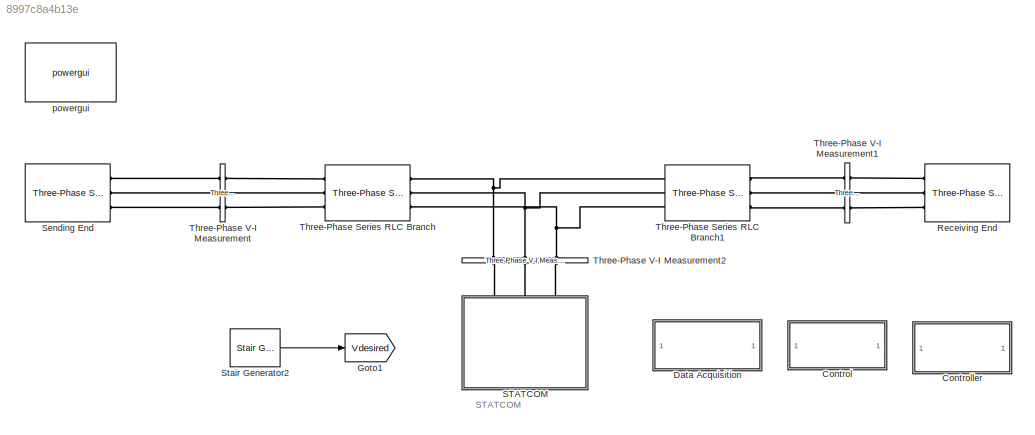
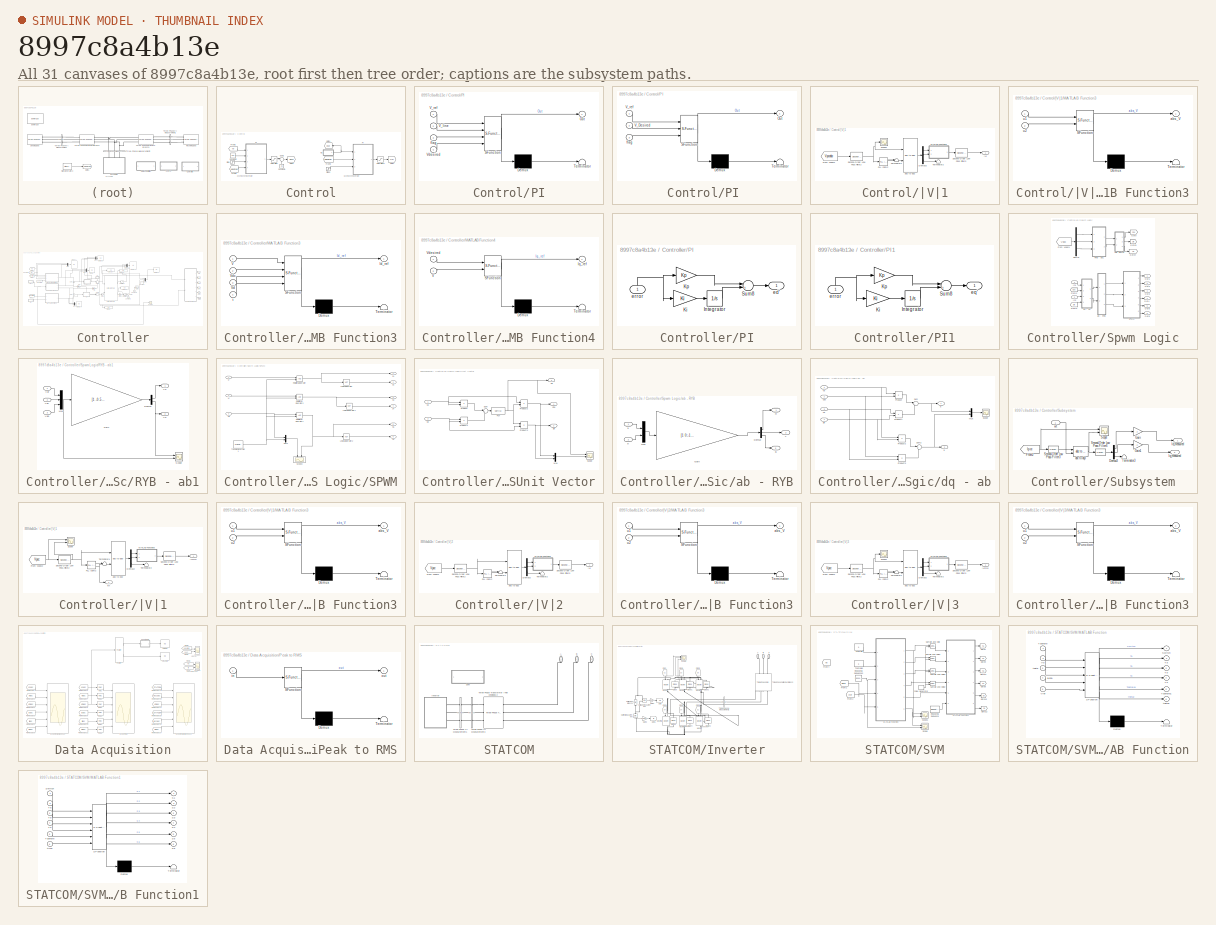
[diagram: thumbnail index - all 31 canvases of the model, root first then tree order]
MODEL slx_8997c8a4b13e
KIND model
CONFIG AbsTol = auto
CONFIG FixedStep = auto
CONFIG MaxStep = auto
CONFIG MinStep = auto
CONFIG RelTol = 1e-3
CONFIG SampleTimeConstraint = Unconstrained
CONFIG Solver = VariableStepAuto
CONFIG SolverMode = Auto
CONFIG SolverName = VariableStepAuto
CONFIG StartTime = 0.0
CONFIG StopTime = 10.0
BLOCK [SubSystem] Control
  Ports = []
  RequestExecContextInheritance = off
  Variant = off
BLOCK [Constant] Control/Constant1
  Value = 15
BLOCK [Constant] Control/Constant2
  Value = Vdc
BLOCK [From] Control/From1
  GotoTag = Vdesired
  TagVisibility = global
BLOCK [From] Control/From2
  GotoTag = Vd
  TagVisibility = global
BLOCK [From] Control/From3
  GotoTag = Vdesired
  TagVisibility = global
BLOCK [Goto] Control/Goto1
  GotoTag = Vout
  TagVisibility = global
BLOCK [Goto] Control/Goto3
  GotoTag = alpha
  TagVisibility = global
BLOCK [Goto] Control/Goto4
  GotoTag = Vref
  TagVisibility = global
BLOCK [SubSystem] Control/PI
  ErrorFcn = Stateflow.Translate.translate
  PermitHierarchicalResolution = ExplicitOnly
  Ports = [4, 1]
  RequestExecContextInheritance = off
  SFBlockType = MATLAB Function
  TreatAsAtomicUnit = on
  Variant = off
BLOCK [SubSystem] Control/PI 
  ErrorFcn = Stateflow.Translate.translate
  PermitHierarchicalResolution = ExplicitOnly
  Ports = [3, 1]
  RequestExecContextInheritance = off
  SFBlockType = MATLAB Function
  TreatAsAtomicUnit = on
  Variant = off
BLOCK [Demux] Control/PI / Demux 
  Outputs = 1
  Ports = [1, 1]
BLOCK [S-Function] Control/PI / SFunction 
  EnableBusSupport = on
  FunctionName = sf_sfun
  PortCounts = [3 2]
  Ports = [3, 2]
  SFunctionDeploymentMode = off
  Tag = Stateflow S-Function Direct 4
BLOCK [Terminator] Control/PI / Terminator 
BLOCK [Outport] Control/PI /Out
  IconDisplay = Port number
BLOCK [Inport] Control/PI /V_Desired
  IconDisplay = Port number
  Port = 2
BLOCK [Inport] Control/PI /V_ref
  IconDisplay = Port number
BLOCK [Inport] Control/PI /flag
  IconDisplay = Port number
  Port = 3
BLOCK [Demux] Control/PI/ Demux 
  Outputs = 1
  Ports = [1, 1]
BLOCK [S-Function] Control/PI/ SFunction 
  EnableBusSupport = on
  FunctionName = sf_sfun
  PortCounts = [4 2]
  Ports = [4, 2]
  SFunctionDeploymentMode = off
  Tag = Stateflow S-Function Direct 7
BLOCK [Terminator] Control/PI/ Terminator 
BLOCK [Outport] Control/PI/Out
  IconDisplay = Port number
BLOCK [Inport] Control/PI/V_line
  IconDisplay = Port number
  Port = 2
BLOCK [Inport] Control/PI/V_ref
  IconDisplay = Port number
BLOCK [Inport] Control/PI/Vdesired
  IconDisplay = Port number
  Port = 4
BLOCK [Inport] Control/PI/flag
  IconDisplay = Port number
  Port = 3
BLOCK [Saturate] Control/Saturation
  InputPortMap = u0
  LowerLimit = -25
  Ports = [1, 1]
  UpperLimit = 45
BLOCK [Saturate] Control/Saturation4
  InputPortMap = u0
  LowerLimit = 0.057
  Ports = [1, 1]
  UpperLimit = 1/sqrt(3)
BLOCK [Step] Control/Step
  SampleTime = 0
  Time = 0.1
BLOCK [Step] Control/Step1
  SampleTime = 0
  Time = .04
BLOCK [Sum] Control/Sum2
  IconShape = round
  Inputs = |++
  Ports = [2, 1]
BLOCK [SubSystem] Control/|V|1
  Ports = [0, 1]
  RequestExecContextInheritance = off
  Variant = off
BLOCK [Demux] Control/|V|1/Demux2
  DisplayOption = bar
  Outputs = 3
  Ports = [1, 3]
BLOCK [From] Control/|V|1/From Vsabc2
  GotoTag = Vpccabc
  TagVisibility = global
BLOCK [SubSystem] Control/|V|1/MATLAB Function3
  ErrorFcn = Stateflow.Translate.translate
  PermitHierarchicalResolution = ExplicitOnly
  Ports = [2, 1]
  RequestExecContextInheritance = off
  SFBlockType = MATLAB Function
  TreatAsAtomicUnit = on
  Variant = off
BLOCK [Demux] Control/|V|1/MATLAB Function3/ Demux 
  Outputs = 1
  Ports = [1, 1]
BLOCK [S-Function] Control/|V|1/MATLAB Function3/ SFunction 
  EnableBusSupport = on
  FunctionName = sf_sfun
  PortCounts = [2 2]
  Ports = [2, 2]
  SFunctionDeploymentMode = off
  Tag = Stateflow S-Function Direct 9
BLOCK [Terminator] Control/|V|1/MATLAB Function3/ Terminator 
BLOCK [Outport] Control/|V|1/MATLAB Function3/abs_V
  IconDisplay = Port number
BLOCK [Inport] Control/|V|1/MATLAB Function3/u1
  IconDisplay = Port number
BLOCK [Inport] Control/|V|1/MATLAB Function3/u2
  IconDisplay = Port number
  Port = 2
BLOCK [Reference] Control/|V|1/PLL (3ph)2  REF=powerlib_meascontrol/PLL/PLL
(3ph)
  Ports = [1, 2]
  SourceBlock = powerlib_meascontrol/PLL/PLL\n(3ph)
  SourceType = PLL (3ph)
BLOCK [Scope] Control/|V|1/Scope1
  Ports = [1]
  ScopeSpecificationString = Simulink.scopes.TimeScopeBlockCfg('CurrentConfiguration', extmgr.ConfigurationSet(extmgr.Configuration('Core','General UI',true),extmgr.Configuration('Core','Source UI',true),extmgr.Configuration('Sources','WiredSimulink',true,'DataLoggingVariableName','ScopeData5'),extmgr.Configuration('Visuals','Time Domain',true,'SerializedDisplays',{struct('MinYLimReal','-0.12242','MaxYLimReal','0.11929','YLab...<+1504ch>
BLOCK [Reference] Control/|V|1/Second-Order Low Pass Filter2  REF=powerlib_meascontrol/Filters/Second-Order
Filter
  AttributesFormatString = f0: %<Fo>
  Ports = [1, 1]
  SourceBlock = powerlib_meascontrol/Filters/Second-Order\nFilter
  SourceType = Second-Order Filter
BLOCK [Reference] Control/|V|1/Second-Order Low Pass Filter3  REF=powerlib_meascontrol/Filters/Second-Order
Filter
  AttributesFormatString = f0: %<Fo>
  Ports = [1, 1]
  SourceBlock = powerlib_meascontrol/Filters/Second-Order\nFilter
  SourceType = Second-Order Filter
BLOCK [Terminator] Control/|V|1/Terminator1
BLOCK [Terminator] Control/|V|1/Terminator2
BLOCK [Reference] Control/|V|1/abc to dq2  REF=powerlib_meascontrol/Transformations/abc to dq0
  Ports = [2, 1]
  SourceBlock = powerlib_meascontrol/Transformations/abc to dq0
  SourceType = abc to dq0 Transformation
BLOCK [Outport] Control/|V|1/|V|
  IconDisplay = Port number
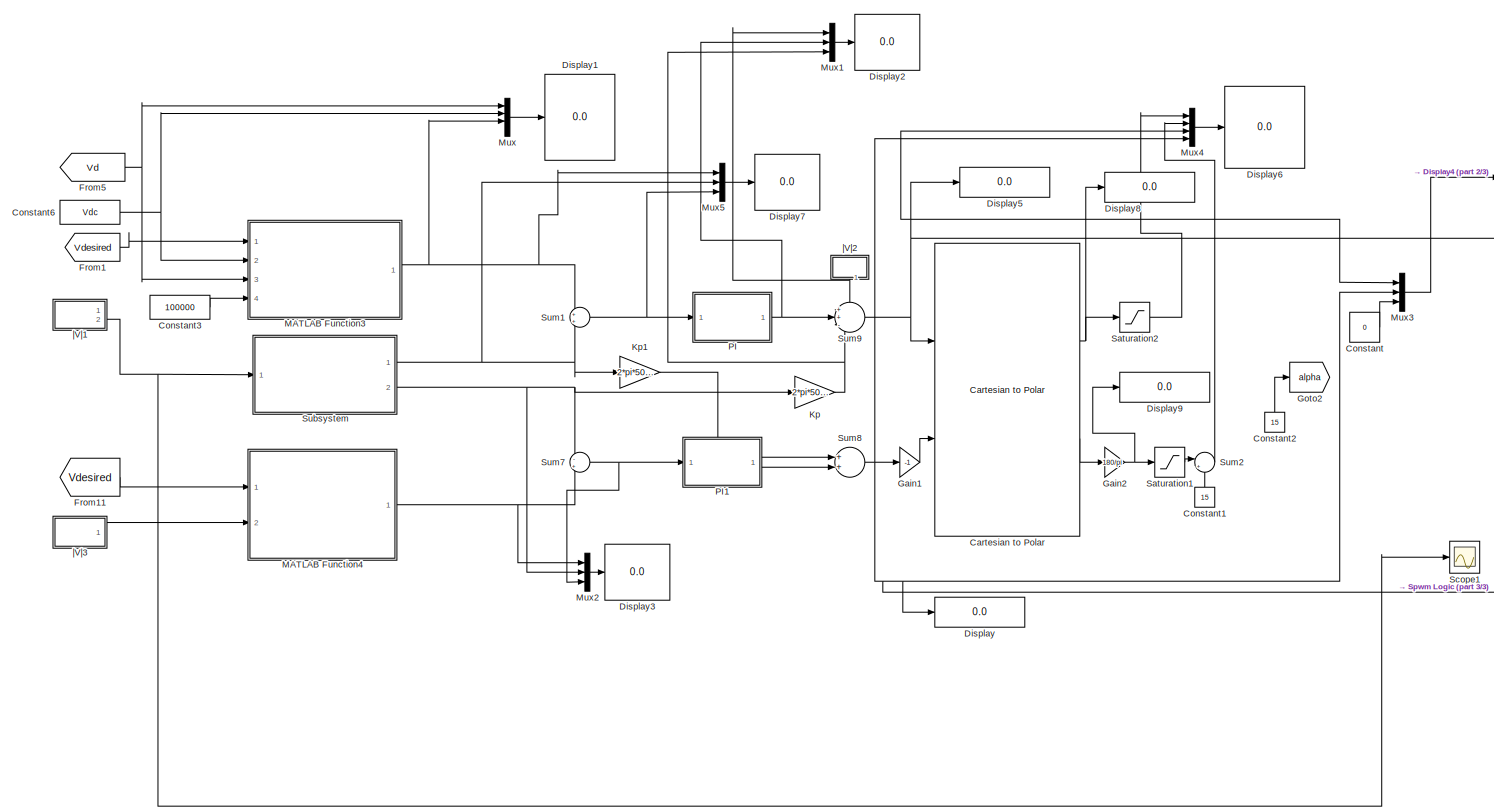
[diagram: Controller - part 1/3, center side, full height]
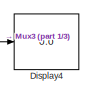
[diagram: Controller - part 2/3, top right region]
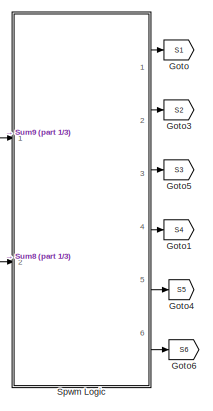
[diagram: Controller - part 3/3, middle right region]
BLOCK [SubSystem] Controller
  Ports = []
  RequestExecContextInheritance = off
  Variant = off
BLOCK [Reference] Controller/Cartesian to Polar  REF=simulink_extras/Transformations/Cartesian to
Polar
  Commented = on
  Ports = [2, 2]
  SourceBlock = simulink_extras/Transformations/Cartesian to\nPolar
  SourceType = Cart2Polar
BLOCK [Constant] Controller/Constant
  Commented = on
  Value = 0
BLOCK [Constant] Controller/Constant1
  Commented = on
  Value = 15
BLOCK [Constant] Controller/Constant2
  Commented = on
  Value = 15
BLOCK [Constant] Controller/Constant3
  Commented = on
  Value = 100000
BLOCK [Constant] Controller/Constant6
  Commented = on
  Value = Vdc
BLOCK [Display] Controller/Display
  Commented = on
  Decimation = 1
  Ports = [1]
BLOCK [Display] Controller/Display1
  Commented = on
  Decimation = 1
  Ports = [1]
BLOCK [Display] Controller/Display2
  Commented = on
  Decimation = 1
  Ports = [1]
BLOCK [Display] Controller/Display3
  Commented = on
  Decimation = 1
  Ports = [1]
BLOCK [Display] Controller/Display4
  Commented = on
  Decimation = 1
  Ports = [1]
BLOCK [Display] Controller/Display5
  Commented = on
  Decimation = 1
  Ports = [1]
BLOCK [Display] Controller/Display6
  Commented = on
  Decimation = 1
  Ports = [1]
BLOCK [Display] Controller/Display7
  Commented = on
  Decimation = 1
  Ports = [1]
BLOCK [Display] Controller/Display8
  Commented = on
  Decimation = 1
  Ports = [1]
BLOCK [Display] Controller/Display9
  Commented = on
  Decimation = 1
  Ports = [1]
BLOCK [From] Controller/From1
  Commented = on
  GotoTag = Vdesired
  TagVisibility = global
BLOCK [From] Controller/From11
  Commented = on
  GotoTag = Vdesired
  TagVisibility = global
BLOCK [From] Controller/From5
  Commented = on
  GotoTag = Vd
  TagVisibility = global
BLOCK [Gain] Controller/Gain1
  Commented = on
  Gain = -1
  OutDataTypeStr = Inherit: Inherit via internal rule
  ParamDataTypeStr = Inherit: Inherit via internal rule
  SaturateOnIntegerOverflow = off
BLOCK [Gain] Controller/Gain2
  Commented = on
  Gain = 180/pi
  OutDataTypeStr = Inherit: Inherit via internal rule
  ParamDataTypeStr = Inherit: Inherit via internal rule
  SaturateOnIntegerOverflow = off
BLOCK [Goto] Controller/Goto
  Commented = on
  GotoTag = S1
  TagVisibility = global
BLOCK [Goto] Controller/Goto1
  Commented = on
  GotoTag = S4
  TagVisibility = global
BLOCK [Goto] Controller/Goto2
  Commented = on
  GotoTag = alpha
  TagVisibility = global
BLOCK [Goto] Controller/Goto3
  Commented = on
  GotoTag = S2
  TagVisibility = global
BLOCK [Goto] Controller/Goto4
  Commented = on
  GotoTag = S5
  TagVisibility = global
BLOCK [Goto] Controller/Goto5
  Commented = on
  GotoTag = S3
  TagVisibility = global
BLOCK [Goto] Controller/Goto6
  Commented = on
  GotoTag = S6
  TagVisibility = global
BLOCK [Gain] Controller/Kp
  Commented = on
  Gain = 2*pi*50*1e-3/.484
  OutDataTypeStr = Inherit: Inherit via internal rule
  ParamDataTypeStr = Inherit: Inherit via internal rule
  SaturateOnIntegerOverflow = off
BLOCK [Gain] Controller/Kp1
  Commented = on
  Gain = 2*pi*50*1e-3/.484
  OutDataTypeStr = Inherit: Inherit via internal rule
  ParamDataTypeStr = Inherit: Inherit via internal rule
  SaturateOnIntegerOverflow = off
BLOCK [SubSystem] Controller/MATLAB Function3
  Commented = on
  ErrorFcn = Stateflow.Translate.translate
  PermitHierarchicalResolution = ExplicitOnly
  Ports = [4, 1]
  RequestExecContextInheritance = off
  SFBlockType = MATLAB Function
  TreatAsAtomicUnit = on
  Variant = off
BLOCK [Demux] Controller/MATLAB Function3/ Demux 
  Outputs = 1
  Ports = [1, 1]
BLOCK [S-Function] Controller/MATLAB Function3/ SFunction 
  EnableBusSupport = on
  FunctionName = sf_sfun
  PortCounts = [4 2]
  Ports = [4, 2]
  SFunctionDeploymentMode = off
  Tag = Stateflow S-Function Direct 17
BLOCK [Terminator] Controller/MATLAB Function3/ Terminator 
BLOCK [Outport] Controller/MATLAB Function3/Id_ref
  IconDisplay = Port number
BLOCK [Inport] Controller/MATLAB Function3/V
  IconDisplay = Port number
BLOCK [Inport] Controller/MATLAB Function3/Vd
  IconDisplay = Port number
  Port = 3
BLOCK [Inport] Controller/MATLAB Function3/Vdc
  IconDisplay = Port number
  Port = 2
BLOCK [Inport] Controller/MATLAB Function3/t
  IconDisplay = Port number
  Port = 4
BLOCK [SubSystem] Controller/MATLAB Function4
  Commented = on
  ErrorFcn = Stateflow.Translate.translate
  PermitHierarchicalResolution = ExplicitOnly
  Ports = [2, 1]
  RequestExecContextInheritance = off
  SFBlockType = MATLAB Function
  TreatAsAtomicUnit = on
  Variant = off
BLOCK [Demux] Controller/MATLAB Function4/ Demux 
  Outputs = 1
  Ports = [1, 1]
BLOCK [S-Function] Controller/MATLAB Function4/ SFunction 
  EnableBusSupport = on
  FunctionName = sf_sfun
  PortCounts = [2 2]
  Ports = [2, 2]
  SFunctionDeploymentMode = off
  Tag = Stateflow S-Function Direct 20
BLOCK [Terminator] Controller/MATLAB Function4/ Terminator 
BLOCK [Outport] Controller/MATLAB Function4/Iq_ref
  IconDisplay = Port number
BLOCK [Inport] Controller/MATLAB Function4/V
  IconDisplay = Port number
  Port = 2
BLOCK [Inport] Controller/MATLAB Function4/Vdesired
  IconDisplay = Port number
BLOCK [Mux] Controller/Mux
  Commented = on
  DisplayOption = bar
  Ports = [4, 1]
BLOCK [Mux] Controller/Mux1
  Commented = on
  DisplayOption = bar
  Inputs = 3
  Ports = [3, 1]
BLOCK [Mux] Controller/Mux2
  Commented = on
  DisplayOption = bar
  Inputs = 3
  Ports = [3, 1]
BLOCK [Mux] Controller/Mux3
  Commented = on
  DisplayOption = bar
  Inputs = 3
  Ports = [3, 1]
BLOCK [Mux] Controller/Mux4
  Commented = on
  DisplayOption = bar
  Ports = [4, 1]
BLOCK [Mux] Controller/Mux5
  Commented = on
  DisplayOption = bar
  Inputs = 3
  Ports = [3, 1]
BLOCK [SubSystem] Controller/PI
  Commented = on
  Ports = [1, 1]
  RequestExecContextInheritance = off
  Variant = off
BLOCK [Integrator] Controller/PI/Integrator
  IgnoreLimit = on
  LimitOutput = on
  Ports = [1, 1]
BLOCK [Gain] Controller/PI/Ki
  Gain = Ki
  OutDataTypeStr = Inherit: Inherit via internal rule
  ParamDataTypeStr = Inherit: Inherit via internal rule
  SaturateOnIntegerOverflow = off
BLOCK [Gain] Controller/PI/Kp
  Gain = Kp
  OutDataTypeStr = Inherit: Inherit via internal rule
  ParamDataTypeStr = Inherit: Inherit via internal rule
  SaturateOnIntegerOverflow = off
BLOCK [Sum] Controller/PI/Sum8
  IconShape = round
  InputSameDT = off
  Inputs = |++
  OutDataTypeStr = Inherit: Inherit via internal rule
  Ports = [2, 1]
  SaturateOnIntegerOverflow = off
BLOCK [Outport] Controller/PI/ed'
  IconDisplay = Port number
BLOCK [Inport] Controller/PI/error
  IconDisplay = Port number
BLOCK [SubSystem] Controller/PI1
  Commented = on
  Ports = [1, 1]
  RequestExecContextInheritance = off
  Variant = off
BLOCK [Integrator] Controller/PI1/Integrator
  LimitOutput = on
  Ports = [1, 1]
BLOCK [Gain] Controller/PI1/Ki
  Gain = Ki
  OutDataTypeStr = Inherit: Inherit via internal rule
  ParamDataTypeStr = Inherit: Inherit via internal rule
  SaturateOnIntegerOverflow = off
BLOCK [Gain] Controller/PI1/Kp
  Gain = Kp
  OutDataTypeStr = Inherit: Inherit via internal rule
  ParamDataTypeStr = Inherit: Inherit via internal rule
  SaturateOnIntegerOverflow = off
BLOCK [Sum] Controller/PI1/Sum8
  IconShape = round
  InputSameDT = off
  Inputs = |++
  OutDataTypeStr = Inherit: Inherit via internal rule
  Ports = [2, 1]
  SaturateOnIntegerOverflow = off
BLOCK [Outport] Controller/PI1/eq'
  IconDisplay = Port number
BLOCK [Inport] Controller/PI1/error
  IconDisplay = Port number
BLOCK [Saturate] Controller/Saturation1
  Commented = on
  InputPortMap = u0
  LinearizeAsGain = off
  LowerLimit = -28.5
  Ports = [1, 1]
  UpperLimit = 2
  ZeroCross = off
BLOCK [Saturate] Controller/Saturation2
  Commented = on
  InputPortMap = u0
  LowerLimit = Vdc*.1e-9
  Ports = [1, 1]
  UpperLimit = Vdc/sqrt(3)
BLOCK [Scope] Controller/Scope1
  Commented = on
  Ports = [1]
  ScopeSpecificationString = Simulink.scopes.TimeScopeBlockCfg('CurrentConfiguration', extmgr.ConfigurationSet(extmgr.Configuration('Core','General UI',true),extmgr.Configuration('Core','Source UI',true),extmgr.Configuration('Sources','WiredSimulink',true,'DataLoggingVariableName','ScopeData3'),extmgr.Configuration('Visuals','Time Domain',true,'SerializedDisplays',{struct('MinYLimReal','-0.63304','MaxYLimReal','6.57144','YLab...<+1411ch>
BLOCK [SubSystem] Controller/Spwm Logic
  Commented = on
  Ports = [2, 6]
  RequestExecContextInheritance = off
  Variant = off
BLOCK [Demux] Controller/Spwm Logic/Demux
  DisplayOption = bar
  Outputs = 3
  Ports = [1, 3]
BLOCK [From] Controller/Spwm Logic/From Vsabc1
  GotoTag = Vpcc
  TagVisibility = global
BLOCK [From] Controller/Spwm Logic/From2
  GotoTag = Cos
BLOCK [From] Controller/Spwm Logic/From3
  GotoTag = Sin
BLOCK [Goto] Controller/Spwm Logic/Goto
  GotoTag = Cos
BLOCK [Goto] Controller/Spwm Logic/Goto3
  GotoTag = Sin
BLOCK [Goto] Controller/Spwm Logic/Goto4
  GotoTag = Vg
BLOCK [Inport] Controller/Spwm Logic/In1
  IconDisplay = Port number
BLOCK [Inport] Controller/Spwm Logic/In2
  IconDisplay = Port number
  Port = 2
BLOCK [Outport] Controller/Spwm Logic/Out1
  IconDisplay = Port number
BLOCK [Outport] Controller/Spwm Logic/Out2
  IconDisplay = Port number
  Port = 2
BLOCK [Outport] Controller/Spwm Logic/Out3
  IconDisplay = Port number
  Port = 3
BLOCK [Outport] Controller/Spwm Logic/Out4
  IconDisplay = Port number
  Port = 4
BLOCK [Outport] Controller/Spwm Logic/Out5
  IconDisplay = Port number
  Port = 5
BLOCK [Outport] Controller/Spwm Logic/Out6
  IconDisplay = Port number
  Port = 6
BLOCK [SubSystem] Controller/Spwm Logic/RYB - ab1
  Ports = [3, 2]
  RequestExecContextInheritance = off
  Variant = off
BLOCK [Demux] Controller/Spwm Logic/RYB - ab1/Demux
  DisplayOption = bar
  Outputs = 2
  Ports = [1, 2]
BLOCK [Gain] Controller/Spwm Logic/RYB - ab1/Gain
  Gain = [1 -0.5 -0.5;0 0.866 -0.866]
  Multiplication = Matrix(K*u)
  OutDataTypeStr = Inherit: Inherit via internal rule
  ParamDataTypeStr = Inherit: Inherit via internal rule
  SaturateOnIntegerOverflow = off
BLOCK [Mux] Controller/Spwm Logic/RYB - ab1/Mux
  DisplayOption = bar
  Inputs = 3
  Ports = [3, 1]
BLOCK [Scope] Controller/Spwm Logic/RYB - ab1/Scope
  NumInputPorts = 2
  Ports = [2]
  ScopeSpecificationString = C++SS(StrPVP('Location','[63, 49, 1367, 767]'),StrPVP('Open','off'),StrPVP('ZoomMode','xonly'),MxPVP('AxesTitles',24,'struct(''axes1'',''%<SignalLabel>'',''axes2'',''%<SignalLabel>'')'),MxPVP('ScopeGraphics',28,'struct(''FigureColor'',''[0.5 0.5 0.5]'',''AxesColor'',''[0 0 0]'',''AxesTickColor'',''[1 1 1]'',''LineColors'',''[1 1 0;1 0 1;0 1 1;1 0 0;0 1 0;0 0 1]'',''LineStyles'',''-|-|-|-|-|-'',''L...<+379ch>
BLOCK [Outport] Controller/Spwm Logic/RYB - ab1/Va
  IconDisplay = Port number
BLOCK [Outport] Controller/Spwm Logic/RYB - ab1/Vb
  IconDisplay = Port number
  Port = 2
BLOCK [Inport] Controller/Spwm Logic/RYB - ab1/Vgb
  IconDisplay = Port number
  Port = 3
BLOCK [Inport] Controller/Spwm Logic/RYB - ab1/Vgr
  IconDisplay = Port number
BLOCK [Inport] Controller/Spwm Logic/RYB - ab1/Vgy
  IconDisplay = Port number
  Port = 2
BLOCK [SubSystem] Controller/Spwm Logic/SPWM
  Ports = [3, 6]
  RequestExecContextInheritance = off
  Variant = off
BLOCK [Logic] Controller/Spwm Logic/SPWM/Logical Operator
  AllPortsSameDT = off
  IconShape = distinctive
  Operator = NOT
  OutDataTypeStr = boolean
  Ports = [1, 1]
BLOCK [Logic] Controller/Spwm Logic/SPWM/Logical Operator1
  AllPortsSameDT = off
  IconShape = distinctive
  Operator = NOT
  OutDataTypeStr = boolean
  Ports = [1, 1]
BLOCK [Logic] Controller/Spwm Logic/SPWM/Logical Operator2
  AllPortsSameDT = off
  IconShape = distinctive
  Operator = NOT
  OutDataTypeStr = boolean
  Ports = [1, 1]
BLOCK [Mux] Controller/Spwm Logic/SPWM/Mux3
  DisplayOption = bar
  Inputs = 2
  Ports = [2, 1]
BLOCK [RelationalOperator] Controller/Spwm Logic/SPWM/Relational Operator
  InputSameDT = off
  OutDataTypeStr = boolean
  Ports = [2, 1]
BLOCK [RelationalOperator] Controller/Spwm Logic/SPWM/Relational Operator1
  InputSameDT = off
  OutDataTypeStr = boolean
  Ports = [2, 1]
BLOCK [RelationalOperator] Controller/Spwm Logic/SPWM/Relational Operator2
  InputSameDT = off
  OutDataTypeStr = boolean
  Ports = [2, 1]
BLOCK [Outport] Controller/Spwm Logic/SPWM/S1
  IconDisplay = Port number
BLOCK [Outport] Controller/Spwm Logic/SPWM/S2
  IconDisplay = Port number
  Port = 2
BLOCK [Outport] Controller/Spwm Logic/SPWM/S3
  IconDisplay = Port number
  Port = 3
BLOCK [Outport] Controller/Spwm Logic/SPWM/S4
  IconDisplay = Port number
  Port = 4
BLOCK [Outport] Controller/Spwm Logic/SPWM/S5
  IconDisplay = Port number
  Port = 5
BLOCK [Outport] Controller/Spwm Logic/SPWM/S6
  IconDisplay = Port number
  Port = 6
BLOCK [Scope] Controller/Spwm Logic/SPWM/Scope2
  NumInputPorts = 2
  Ports = [2]
  ScopeSpecificationString = Simulink.scopes.TimeScopeBlockCfg('CurrentConfiguration', extmgr.ConfigurationSet(extmgr.Configuration('Core','General UI',true),extmgr.Configuration('Core','Source UI',true),extmgr.Configuration('Sources','WiredSimulink',true,'DataLoggingVariableName','ScopeData2','DataLoggingSaveFormat','StructureWithTime','DataLoggingDecimation','1','DataLoggingDecimateData',true),extmgr.Configuration('Visuals'...<+2387ch>
BLOCK [Reference] Controller/Spwm Logic/SPWM/Triangle Generator1  REF=powerlib_meascontrol/Pulse & Signal
Generators/Triangle
Generator
  Ports = [0, 1]
  SourceBlock = powerlib_meascontrol/Pulse & Signal\nGenerators/Triangle\nGenerator
  SourceType = Triangle Generator
BLOCK [Inport] Controller/Spwm Logic/SPWM/Vb
  IconDisplay = Port number
  Port = 3
BLOCK [Inport] Controller/Spwm Logic/SPWM/Vr
  IconDisplay = Port number
BLOCK [Inport] Controller/Spwm Logic/SPWM/Vy
  IconDisplay = Port number
  Port = 2
BLOCK [SubSystem] Controller/Spwm Logic/Unit Vector
  Ports = [2, 3]
  RequestExecContextInheritance = off
  Variant = off
BLOCK [Outport] Controller/Spwm Logic/Unit Vector/Cos
  IconDisplay = Port number
BLOCK [Fcn] Controller/Spwm Logic/Unit Vector/Fcn
  Expr = sqrt(u)
BLOCK [Mux] Controller/Spwm Logic/Unit Vector/Mux
  DisplayOption = bar
  Inputs = 2
  Ports = [2, 1]
BLOCK [Product] Controller/Spwm Logic/Unit Vector/Product
  InputSameDT = off
  OutDataTypeStr = Inherit: Inherit via internal rule
  Ports = [2, 1]
  RndMeth = Floor
  SaturateOnIntegerOverflow = off
BLOCK [Product] Controller/Spwm Logic/Unit Vector/Product1
  InputSameDT = off
  OutDataTypeStr = Inherit: Inherit via internal rule
  Ports = [2, 1]
  RndMeth = Floor
  SaturateOnIntegerOverflow = off
BLOCK [Product] Controller/Spwm Logic/Unit Vector/Product2
  InputSameDT = off
  Inputs = */
  OutDataTypeStr = Inherit: Inherit via internal rule
  Ports = [2, 1]
  RndMeth = Floor
  SaturateOnIntegerOverflow = off
BLOCK [Product] Controller/Spwm Logic/Unit Vector/Product3
  InputSameDT = off
  Inputs = /*
  OutDataTypeStr = Inherit: Inherit via internal rule
  Ports = [2, 1]
  RndMeth = Floor
  SaturateOnIntegerOverflow = off
BLOCK [Scope] Controller/Spwm Logic/Unit Vector/Scope
  NumInputPorts = 2
  Ports = [2]
  ScopeSpecificationString = C++SS(StrPVP('Location','[63, 49, 1367, 767]'),StrPVP('Open','off'),StrPVP('ZoomMode','xonly'),MxPVP('AxesTitles',24,'struct(''axes1'',''%<SignalLabel>'',''axes2'',''%<SignalLabel>'')'),MxPVP('ScopeGraphics',28,'struct(''FigureColor'',''[0.5 0.5 0.5]'',''AxesColor'',''[0 0 0]'',''AxesTickColor'',''[1 1 1]'',''LineColors'',''[1 1 0;1 0 1;0 1 1;1 0 0;0 1 0;0 0 1]'',''LineStyles'',''-|-|-|-|-|-'',''L...<+380ch>
BLOCK [Outport] Controller/Spwm Logic/Unit Vector/Sin
  IconDisplay = Port number
  Port = 2
BLOCK [Sum] Controller/Spwm Logic/Unit Vector/Sum
  IconShape = round
  InputSameDT = off
  Inputs = |++
  OutDataTypeStr = Inherit: Inherit via internal rule
  Ports = [2, 1]
  SaturateOnIntegerOverflow = off
BLOCK [Inport] Controller/Spwm Logic/Unit Vector/Va
  IconDisplay = Port number
BLOCK [Inport] Controller/Spwm Logic/Unit Vector/Vb
  IconDisplay = Port number
  Port = 2
BLOCK [Outport] Controller/Spwm Logic/Unit Vector/Vg
  IconDisplay = Port number
  Port = 3
BLOCK [SubSystem] Controller/Spwm Logic/ab - RYB
  Ports = [2, 3]
  RequestExecContextInheritance = off
  Variant = off
BLOCK [Outport] Controller/Spwm Logic/ab - RYB/B
  IconDisplay = Port number
  Port = 3
BLOCK [Demux] Controller/Spwm Logic/ab - RYB/Demux
  DisplayOption = bar
  Outputs = 3
  Ports = [1, 3]
BLOCK [Gain] Controller/Spwm Logic/ab - RYB/Gain
  Gain = [1 0;-1/2 sqrt(3)/2;-1/2 -sqrt(3)/2]
  Multiplication = Matrix(K*u)
  OutDataTypeStr = Inherit: Inherit via internal rule
  ParamDataTypeStr = Inherit: Inherit via internal rule
  SaturateOnIntegerOverflow = off
BLOCK [Mux] Controller/Spwm Logic/ab - RYB/Mux
  DisplayOption = bar
  Inputs = 2
  Ports = [2, 1]
BLOCK [Outport] Controller/Spwm Logic/ab - RYB/R
  IconDisplay = Port number
BLOCK [Outport] Controller/Spwm Logic/ab - RYB/Y
  IconDisplay = Port number
  Port = 2
BLOCK [Inport] Controller/Spwm Logic/ab - RYB/a
  IconDisplay = Port number
BLOCK [Inport] Controller/Spwm Logic/ab - RYB/b
  IconDisplay = Port number
  Port = 2
BLOCK [SubSystem] Controller/Spwm Logic/dq - ab
  Ports = [4, 2]
  RequestExecContextInheritance = off
  Variant = off
BLOCK [Inport] Controller/Spwm Logic/dq - ab/Cos
  IconDisplay = Port number
  Port = 2
BLOCK [Mux] Controller/Spwm Logic/dq - ab/Mux
  DisplayOption = bar
  Inputs = 2
  Ports = [2, 1]
BLOCK [Product] Controller/Spwm Logic/dq - ab/Product
  InputSameDT = off
  OutDataTypeStr = Inherit: Inherit via internal rule
  Ports = [2, 1]
  RndMeth = Floor
  SaturateOnIntegerOverflow = off
BLOCK [Product] Controller/Spwm Logic/dq - ab/Product1
  InputSameDT = off
  OutDataTypeStr = Inherit: Inherit via internal rule
  Ports = [2, 1]
  RndMeth = Floor
  SaturateOnIntegerOverflow = off
BLOCK [Product] Controller/Spwm Logic/dq - ab/Product2
  InputSameDT = off
  OutDataTypeStr = Inherit: Inherit via internal rule
  Ports = [2, 1]
  RndMeth = Floor
  SaturateOnIntegerOverflow = off
BLOCK [Product] Controller/Spwm Logic/dq - ab/Product3
  InputSameDT = off
  OutDataTypeStr = Inherit: Inherit via internal rule
  Ports = [2, 1]
  RndMeth = Floor
  SaturateOnIntegerOverflow = off
BLOCK [Scope] Controller/Spwm Logic/dq - ab/Scope
  Ports = [1]
  ScopeSpecificationString = C++SS(StrPVP('Location','[63, 49, 1367, 767]'),StrPVP('Open','off'),StrPVP('ZoomMode','xonly'),MxPVP('AxesTitles',24,'struct(''axes1'',''%<SignalLabel>'')'),MxPVP('ScopeGraphics',28,'struct(''FigureColor'',''[0.5 0.5 0.5]'',''AxesColor'',''[0 0 0]'',''AxesTickColor'',''[1 1 1]'',''LineColors'',''[1 1 0;1 0 1;0 1 1;1 0 0;0 1 0;0 0 1]'',''LineStyles'',''-|-|-|-|-|-'',''LineWidths'',''[0.5 0.5 0.5 0....<+339ch>
BLOCK [Inport] Controller/Spwm Logic/dq - ab/Sin
  IconDisplay = Port number
  Port = 4
BLOCK [Sum] Controller/Spwm Logic/dq - ab/Sum
  IconShape = round
  InputSameDT = off
  Inputs = |+-
  OutDataTypeStr = Inherit: Inherit via internal rule
  Ports = [2, 1]
  SaturateOnIntegerOverflow = off
BLOCK [Sum] Controller/Spwm Logic/dq - ab/Sum2
  IconShape = round
  InputSameDT = off
  Inputs = |++
  OutDataTypeStr = Inherit: Inherit via internal rule
  Ports = [2, 1]
  SaturateOnIntegerOverflow = off
BLOCK [Inport] Controller/Spwm Logic/dq - ab/Vd
  IconDisplay = Port number
BLOCK [Inport] Controller/Spwm Logic/dq - ab/Vq
  IconDisplay = Port number
  Port = 3
BLOCK [Outport] Controller/Spwm Logic/dq - ab/a
  IconDisplay = Port number
BLOCK [Outport] Controller/Spwm Logic/dq - ab/b
  IconDisplay = Port number
  Port = 2
BLOCK [SubSystem] Controller/Subsystem
  Commented = on
  Ports = [1, 2]
  RequestExecContextInheritance = off
  Variant = off
BLOCK [Demux] Controller/Subsystem/Demux3
  DisplayOption = bar
  Outputs = 3
  Ports = [1, 3]
BLOCK [From] Controller/Subsystem/From2
  GotoTag = Ipcc
  TagVisibility = global
BLOCK [Gain] Controller/Subsystem/Gain
  Gain = .1
  OutDataTypeStr = Inherit: Inherit via internal rule
  ParamDataTypeStr = Inherit: Inherit via internal rule
  SaturateOnIntegerOverflow = off
BLOCK [Gain] Controller/Subsystem/Gain1
  Gain = .1
  OutDataTypeStr = Inherit: Inherit via internal rule
  ParamDataTypeStr = Inherit: Inherit via internal rule
  SaturateOnIntegerOverflow = off
BLOCK [Outport] Controller/Subsystem/Id_measured
  IconDisplay = Port number
BLOCK [Outport] Controller/Subsystem/Iq_measured
  IconDisplay = Port number
  Port = 2
BLOCK [Scope] Controller/Subsystem/Scope
  NumInputPorts = 2
  Ports = [2]
  ScopeSpecificationString = Simulink.scopes.TimeScopeBlockCfg('CurrentConfiguration', extmgr.ConfigurationSet(extmgr.Configuration('Core','General UI',true),extmgr.Configuration('Core','Source UI',true),extmgr.Configuration('Sources','WiredSimulink',true,'DataLoggingVariableName','ScopeData1'),extmgr.Configuration('Visuals','Time Domain',true,'SerializedDisplays',{struct('MinYLimReal','-13.46396','MaxYLimReal','13.39755','YL...<+2149ch>
BLOCK [Reference] Controller/Subsystem/Second-Order Low Pass Filter3  REF=powerlib_meascontrol/Filters/Second-Order
Filter
  AttributesFormatString = f0: %<Fo>
  Ports = [1, 1]
  SourceBlock = powerlib_meascontrol/Filters/Second-Order\nFilter
  SourceType = Second-Order Filter
BLOCK [Reference] Controller/Subsystem/Second-Order Low Pass Filter6  REF=powerlib_meascontrol/Filters/Second-Order
Filter
  AttributesFormatString = f0: %<Fo>
  Ports = [1, 1]
  SourceBlock = powerlib_meascontrol/Filters/Second-Order\nFilter
  SourceType = Second-Order Filter
BLOCK [Terminator] Controller/Subsystem/Terminator3
BLOCK [Reference] Controller/Subsystem/abc to dq3  REF=powerlib_meascontrol/Transformations/abc to dq0
  Ports = [2, 1]
  SourceBlock = powerlib_meascontrol/Transformations/abc to dq0
  SourceType = abc to dq0 Transformation
BLOCK [Inport] Controller/Subsystem/wt
  IconDisplay = Port number
BLOCK [Sum] Controller/Sum1
  Commented = on
  IconShape = round
  InputSameDT = off
  OutDataTypeStr = Inherit: Inherit via internal rule
  Ports = [2, 1]
  SaturateOnIntegerOverflow = off
BLOCK [Sum] Controller/Sum2
  Commented = on
  IconShape = round
  Inputs = |++
  Ports = [2, 1]
BLOCK [Sum] Controller/Sum7
  Commented = on
  IconShape = round
  InputSameDT = off
  Inputs = -+
  OutDataTypeStr = Inherit: Inherit via internal rule
  Ports = [2, 1]
  SaturateOnIntegerOverflow = off
BLOCK [Sum] Controller/Sum8
  Commented = on
  IconShape = round
  InputSameDT = off
  Inputs = ++|
  OutDataTypeStr = Inherit: Inherit via internal rule
  Ports = [2, 1]
  SaturateOnIntegerOverflow = off
BLOCK [Sum] Controller/Sum9
  Commented = on
  IconShape = round
  InputSameDT = off
  Inputs = ++-
  OutDataTypeStr = Inherit: Inherit via internal rule
  Ports = [3, 1]
  SaturateOnIntegerOverflow = off
BLOCK [SubSystem] Controller/|V|1
  Commented = on
  Ports = [0, 2]
  RequestExecContextInheritance = off
  Variant = off
BLOCK [Demux] Controller/|V|1/Demux2
  DisplayOption = bar
  Outputs = 3
  Ports = [1, 3]
BLOCK [From] Controller/|V|1/From Vsabc2
  GotoTag = Vpcc
  TagVisibility = global
BLOCK [SubSystem] Controller/|V|1/MATLAB Function3
  ErrorFcn = Stateflow.Translate.translate
  PermitHierarchicalResolution = ExplicitOnly
  Ports = [2, 1]
  RequestExecContextInheritance = off
  SFBlockType = MATLAB Function
  TreatAsAtomicUnit = on
  Variant = off
BLOCK [Demux] Controller/|V|1/MATLAB Function3/ Demux 
  Outputs = 1
  Ports = [1, 1]
BLOCK [S-Function] Controller/|V|1/MATLAB Function3/ SFunction 
  EnableBusSupport = on
  FunctionName = sf_sfun
  PortCounts = [2 2]
  Ports = [2, 2]
  SFunctionDeploymentMode = off
  Tag = Stateflow S-Function Direct 14
BLOCK [Terminator] Controller/|V|1/MATLAB Function3/ Terminator 
BLOCK [Outport] Controller/|V|1/MATLAB Function3/abs_V
  IconDisplay = Port number
BLOCK [Inport] Controller/|V|1/MATLAB Function3/u1
  IconDisplay = Port number
BLOCK [Inport] Controller/|V|1/MATLAB Function3/u2
  IconDisplay = Port number
  Port = 2
BLOCK [Reference] Controller/|V|1/PLL (3ph)2  REF=powerlib_meascontrol/PLL/PLL
(3ph)
  Ports = [1, 2]
  SourceBlock = powerlib_meascontrol/PLL/PLL\n(3ph)
  SourceType = PLL (3ph)
BLOCK [Scope] Controller/|V|1/Scope
  NumInputPorts = 2
  Ports = [2]
  ScopeSpecificationString = Simulink.scopes.TimeScopeBlockCfg('CurrentConfiguration', extmgr.ConfigurationSet(extmgr.Configuration('Core','General UI',true),extmgr.Configuration('Core','Source UI',true),extmgr.Configuration('Sources','WiredSimulink',true,'DataLoggingVariableName','ScopeData7'),extmgr.Configuration('Visuals','Time Domain',true,'SerializedDisplays',{struct('MinYLimReal','-0.23983','MaxYLimReal','0.22398','YLab...<+2177ch>
BLOCK [Reference] Controller/|V|1/Second-Order Low Pass Filter2  REF=powerlib_meascontrol/Filters/Second-Order
Filter
  AttributesFormatString = f0: %<Fo>
  Ports = [1, 1]
  SourceBlock = powerlib_meascontrol/Filters/Second-Order\nFilter
  SourceType = Second-Order Filter
BLOCK [Reference] Controller/|V|1/Second-Order Low Pass Filter3  REF=powerlib_meascontrol/Filters/Second-Order
Filter
  AttributesFormatString = f0: %<Fo>
  Ports = [1, 1]
  SourceBlock = powerlib_meascontrol/Filters/Second-Order\nFilter
  SourceType = Second-Order Filter
BLOCK [Terminator] Controller/|V|1/Terminator1
BLOCK [Terminator] Controller/|V|1/Terminator2
BLOCK [Reference] Controller/|V|1/abc to dq2  REF=powerlib_meascontrol/Transformations/abc to dq0
  Ports = [2, 1]
  SourceBlock = powerlib_meascontrol/Transformations/abc to dq0
  SourceType = abc to dq0 Transformation
BLOCK [Outport] Controller/|V|1/wt
  IconDisplay = Port number
  Port = 2
BLOCK [Outport] Controller/|V|1/|Vrms|
  IconDisplay = Port number
BLOCK [SubSystem] Controller/|V|2
  Commented = on
  Ports = [0, 1]
  RequestExecContextInheritance = off
  Variant = off
BLOCK [Demux] Controller/|V|2/Demux2
  DisplayOption = bar
  Outputs = 3
  Ports = [1, 3]
BLOCK [From] Controller/|V|2/From Vsabc2
  GotoTag = Vpcc
  TagVisibility = global
BLOCK [SubSystem] Controller/|V|2/MATLAB Function3
  ErrorFcn = Stateflow.Translate.translate
  PermitHierarchicalResolution = ExplicitOnly
  Ports = [2, 1]
  RequestExecContextInheritance = off
  SFBlockType = MATLAB Function
  TreatAsAtomicUnit = on
  Variant = off
BLOCK [Demux] Controller/|V|2/MATLAB Function3/ Demux 
  Outputs = 1
  Ports = [1, 1]
BLOCK [S-Function] Controller/|V|2/MATLAB Function3/ SFunction 
  EnableBusSupport = on
  FunctionName = sf_sfun
  PortCounts = [2 2]
  Ports = [2, 2]
  SFunctionDeploymentMode = off
  Tag = Stateflow S-Function Direct 18
BLOCK [Terminator] Controller/|V|2/MATLAB Function3/ Terminator 
BLOCK [Outport] Controller/|V|2/MATLAB Function3/abs_V
  IconDisplay = Port number
BLOCK [Inport] Controller/|V|2/MATLAB Function3/u1
  IconDisplay = Port number
BLOCK [Inport] Controller/|V|2/MATLAB Function3/u2
  IconDisplay = Port number
  Port = 2
BLOCK [Reference] Controller/|V|2/PLL (3ph)2  REF=powerlib_meascontrol/PLL/PLL
(3ph)
  Ports = [1, 2]
  SourceBlock = powerlib_meascontrol/PLL/PLL\n(3ph)
  SourceType = PLL (3ph)
BLOCK [Reference] Controller/|V|2/Second-Order Low Pass Filter2  REF=powerlib_meascontrol/Filters/Second-Order
Filter
  AttributesFormatString = f0: %<Fo>
  Ports = [1, 1]
  SourceBlock = powerlib_meascontrol/Filters/Second-Order\nFilter
  SourceType = Second-Order Filter
BLOCK [Reference] Controller/|V|2/Second-Order Low Pass Filter3  REF=powerlib_meascontrol/Filters/Second-Order
Filter
  AttributesFormatString = f0: %<Fo>
  Ports = [1, 1]
  SourceBlock = powerlib_meascontrol/Filters/Second-Order\nFilter
  SourceType = Second-Order Filter
BLOCK [Terminator] Controller/|V|2/Terminator1
BLOCK [Terminator] Controller/|V|2/Terminator2
BLOCK [Reference] Controller/|V|2/abc to dq2  REF=powerlib_meascontrol/Transformations/abc to dq0
  Ports = [2, 1]
  SourceBlock = powerlib_meascontrol/Transformations/abc to dq0
  SourceType = abc to dq0 Transformation
BLOCK [Outport] Controller/|V|2/|V|
  IconDisplay = Port number
BLOCK [SubSystem] Controller/|V|3
  Commented = on
  Ports = [0, 1]
  RequestExecContextInheritance = off
  Variant = off
BLOCK [Demux] Controller/|V|3/Demux2
  DisplayOption = bar
  Outputs = 3
  Ports = [1, 3]
BLOCK [From] Controller/|V|3/From Vsabc2
  GotoTag = Vpcc
  TagVisibility = global
BLOCK [SubSystem] Controller/|V|3/MATLAB Function3
  ErrorFcn = Stateflow.Translate.translate
  PermitHierarchicalResolution = ExplicitOnly
  Ports = [2, 1]
  RequestExecContextInheritance = off
  SFBlockType = MATLAB Function
  TreatAsAtomicUnit = on
  Variant = off
BLOCK [Demux] Controller/|V|3/MATLAB Function3/ Demux 
  Outputs = 1
  Ports = [1, 1]
BLOCK [S-Function] Controller/|V|3/MATLAB Function3/ SFunction 
  EnableBusSupport = on
  FunctionName = sf_sfun
  PortCounts = [2 2]
  Ports = [2, 2]
  SFunctionDeploymentMode = off
  Tag = Stateflow S-Function Direct 19
BLOCK [Terminator] Controller/|V|3/MATLAB Function3/ Terminator 
BLOCK [Outport] Controller/|V|3/MATLAB Function3/abs_V
  IconDisplay = Port number
BLOCK [Inport] Controller/|V|3/MATLAB Function3/u1
  IconDisplay = Port number
BLOCK [Inport] Controller/|V|3/MATLAB Function3/u2
  IconDisplay = Port number
  Port = 2
BLOCK [Reference] Controller/|V|3/PLL (3ph)2  REF=powerlib_meascontrol/PLL/PLL
(3ph)
  Ports = [1, 2]
  SourceBlock = powerlib_meascontrol/PLL/PLL\n(3ph)
  SourceType = PLL (3ph)
BLOCK [Scope] Controller/|V|3/Scope1
  Ports = [1]
  ScopeSpecificationString = Simulink.scopes.TimeScopeBlockCfg('CurrentConfiguration', extmgr.ConfigurationSet(extmgr.Configuration('Core','General UI',true),extmgr.Configuration('Core','Source UI',true),extmgr.Configuration('Sources','WiredSimulink',true,'DataLoggingVariableName','ScopeData5'),extmgr.Configuration('Visuals','Time Domain',true,'SerializedDisplays',{struct('MinYLimReal','-0.12242','MaxYLimReal','0.11929','YLab...<+1504ch>
BLOCK [Reference] Controller/|V|3/Second-Order Low Pass Filter2  REF=powerlib_meascontrol/Filters/Second-Order
Filter
  AttributesFormatString = f0: %<Fo>
  Ports = [1, 1]
  SourceBlock = powerlib_meascontrol/Filters/Second-Order\nFilter
  SourceType = Second-Order Filter
BLOCK [Reference] Controller/|V|3/Second-Order Low Pass Filter3  REF=powerlib_meascontrol/Filters/Second-Order
Filter
  AttributesFormatString = f0: %<Fo>
  Ports = [1, 1]
  SourceBlock = powerlib_meascontrol/Filters/Second-Order\nFilter
  SourceType = Second-Order Filter
BLOCK [Terminator] Controller/|V|3/Terminator1
BLOCK [Terminator] Controller/|V|3/Terminator2
BLOCK [Reference] Controller/|V|3/abc to dq2  REF=powerlib_meascontrol/Transformations/abc to dq0
  Ports = [2, 1]
  SourceBlock = powerlib_meascontrol/Transformations/abc to dq0
  SourceType = abc to dq0 Transformation
BLOCK [Outport] Controller/|V|3/|Vrms|
  IconDisplay = Port number
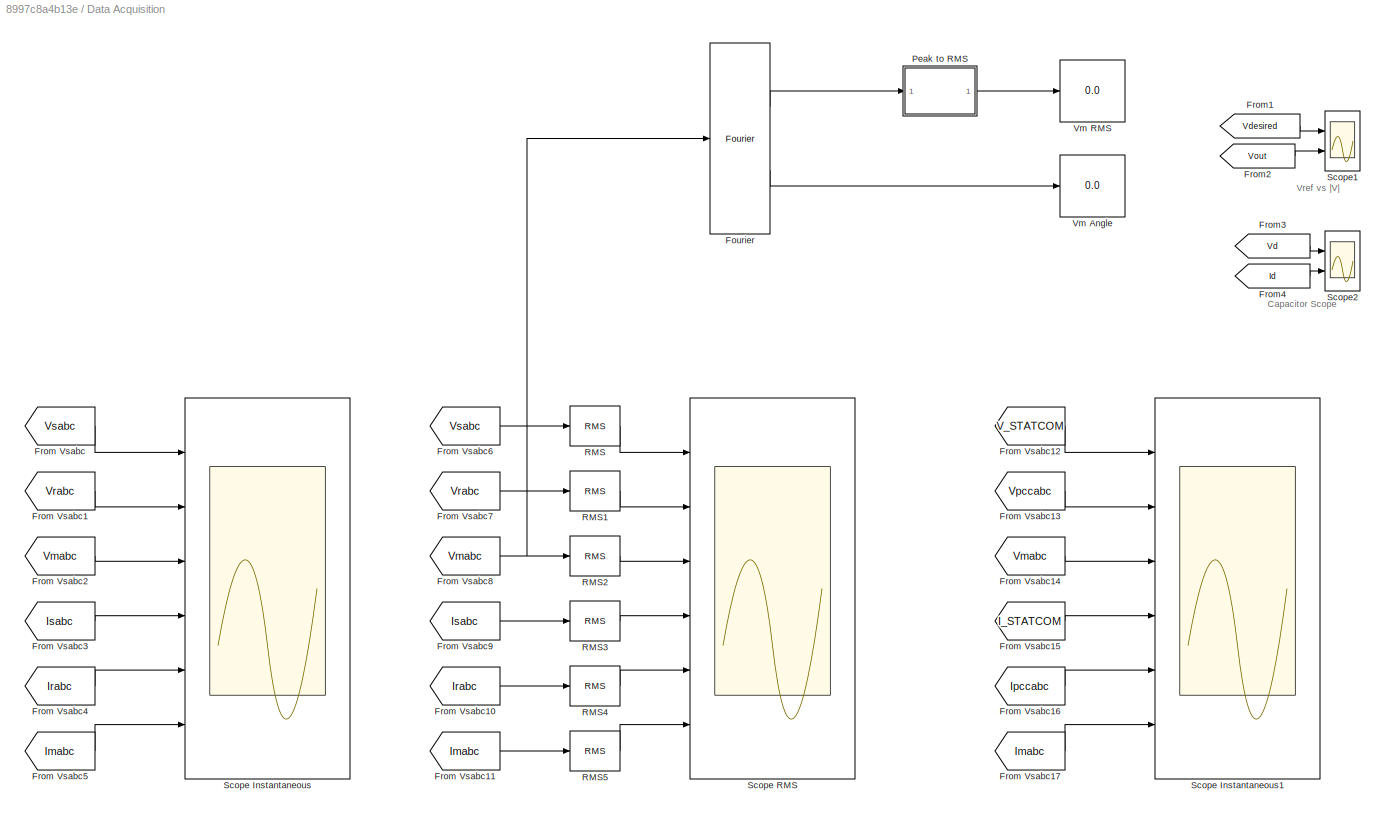
BLOCK [SubSystem] Data Acquisition
  Ports = []
  RequestExecContextInheritance = off
  Variant = off
BLOCK [Reference] Data Acquisition/Fourier  REF=powerlib_meascontrol/Measurements/Fourier
  Ports = [1, 2]
  SourceBlock = powerlib_meascontrol/Measurements/Fourier
  SourceType = Fourier
BLOCK [From] Data Acquisition/From Vsabc
  GotoTag = Vsabc
  TagVisibility = global
BLOCK [From] Data Acquisition/From Vsabc1
  GotoTag = Vrabc
  TagVisibility = global
BLOCK [From] Data Acquisition/From Vsabc10
  GotoTag = Irabc
  TagVisibility = global
BLOCK [From] Data Acquisition/From Vsabc11
  GotoTag = Imabc
  TagVisibility = global
BLOCK [From] Data Acquisition/From Vsabc12
  GotoTag = V_STATCOM
  TagVisibility = global
BLOCK [From] Data Acquisition/From Vsabc13
  GotoTag = Vpccabc
  TagVisibility = global
BLOCK [From] Data Acquisition/From Vsabc14
  GotoTag = Vmabc
  TagVisibility = global
BLOCK [From] Data Acquisition/From Vsabc15
  GotoTag = I_STATCOM
  TagVisibility = global
BLOCK [From] Data Acquisition/From Vsabc16
  GotoTag = Ipccabc
  TagVisibility = global
BLOCK [From] Data Acquisition/From Vsabc17
  GotoTag = Imabc
  TagVisibility = global
BLOCK [From] Data Acquisition/From Vsabc2
  GotoTag = Vmabc
  TagVisibility = global
BLOCK [From] Data Acquisition/From Vsabc3
  GotoTag = Isabc
  TagVisibility = global
BLOCK [From] Data Acquisition/From Vsabc4
  GotoTag = Irabc
  TagVisibility = global
BLOCK [From] Data Acquisition/From Vsabc5
  GotoTag = Imabc
  TagVisibility = global
BLOCK [From] Data Acquisition/From Vsabc6
  GotoTag = Vsabc
  TagVisibility = global
BLOCK [From] Data Acquisition/From Vsabc7
  GotoTag = Vrabc
  TagVisibility = global
BLOCK [From] Data Acquisition/From Vsabc8
  GotoTag = Vmabc
  TagVisibility = global
BLOCK [From] Data Acquisition/From Vsabc9
  GotoTag = Isabc
  TagVisibility = global
BLOCK [From] Data Acquisition/From1
  GotoTag = Vdesired
  TagVisibility = global
BLOCK [From] Data Acquisition/From2
  GotoTag = Vout
  TagVisibility = global
BLOCK [From] Data Acquisition/From3
  GotoTag = Vd
  TagVisibility = global
BLOCK [From] Data Acquisition/From4
  GotoTag = Id
  TagVisibility = global
BLOCK [SubSystem] Data Acquisition/Peak to RMS
  ErrorFcn = Stateflow.Translate.translate
  PermitHierarchicalResolution = ExplicitOnly
  Ports = [1, 1]
  RequestExecContextInheritance = off
  SFBlockType = MATLAB Function
  TreatAsAtomicUnit = on
  Variant = off
BLOCK [Demux] Data Acquisition/Peak to RMS/ Demux 
  Outputs = 1
  Ports = [1, 1]
BLOCK [S-Function] Data Acquisition/Peak to RMS/ SFunction 
  EnableBusSupport = on
  FunctionName = sf_sfun
  PortCounts = [1 2]
  Ports = [1, 2]
  SFunctionDeploymentMode = off
  Tag = Stateflow S-Function Direct 2
BLOCK [Terminator] Data Acquisition/Peak to RMS/ Terminator 
BLOCK [Inport] Data Acquisition/Peak to RMS/in
  IconDisplay = Port number
BLOCK [Outport] Data Acquisition/Peak to RMS/out
  IconDisplay = Port number
BLOCK [Reference] Data Acquisition/RMS  REF=powerlib_meascontrol/Measurements/RMS
  Ports = [1, 1]
  SourceBlock = powerlib_meascontrol/Measurements/RMS
  SourceType = RMS
BLOCK [Reference] Data Acquisition/RMS1  REF=powerlib_meascontrol/Measurements/RMS
  Ports = [1, 1]
  SourceBlock = powerlib_meascontrol/Measurements/RMS
  SourceType = RMS
BLOCK [Reference] Data Acquisition/RMS2  REF=powerlib_meascontrol/Measurements/RMS
  Ports = [1, 1]
  SourceBlock = powerlib_meascontrol/Measurements/RMS
  SourceType = RMS
BLOCK [Reference] Data Acquisition/RMS3  REF=powerlib_meascontrol/Measurements/RMS
  Ports = [1, 1]
  SourceBlock = powerlib_meascontrol/Measurements/RMS
  SourceType = RMS
BLOCK [Reference] Data Acquisition/RMS4  REF=powerlib_meascontrol/Measurements/RMS
  Ports = [1, 1]
  SourceBlock = powerlib_meascontrol/Measurements/RMS
  SourceType = RMS
BLOCK [Reference] Data Acquisition/RMS5  REF=powerlib_meascontrol/Measurements/RMS
  Ports = [1, 1]
  SourceBlock = powerlib_meascontrol/Measurements/RMS
  SourceType = RMS
BLOCK [Scope] Data Acquisition/Scope Instantaneous
  NumInputPorts = 6
  Ports = [6]
  ScopeSpecificationString = Simulink.scopes.TimeScopeBlockCfg('CurrentConfiguration', extmgr.ConfigurationSet(extmgr.Configuration('Core','General UI',true),extmgr.Configuration('Core','Source UI',true),extmgr.Configuration('Sources','WiredSimulink',true),extmgr.Configuration('Visuals','Time Domain',true,'SerializedDisplays',{struct('MinYLimReal','-1.76777','MaxYLimReal','1.76777','YLabelReal','','MinYLimMag','0.00000','MaxY...<+5071ch>
BLOCK [Scope] Data Acquisition/Scope Instantaneous1
  NumInputPorts = 6
  Ports = [6]
  ScopeSpecificationString = Simulink.scopes.TimeScopeBlockCfg('CurrentConfiguration', extmgr.ConfigurationSet(extmgr.Configuration('Core','General UI',true,'FigureColor',[1 1 1]),extmgr.Configuration('Core','Source UI',true),extmgr.Configuration('Sources','WiredSimulink',true,'DataLoggingVariableName','ScopeData1'),extmgr.Configuration('Visuals','Time Domain',true,'SerializedDisplays',{struct('MinYLimReal','-0.69486','MaxYLi...<+7654ch>
BLOCK [Scope] Data Acquisition/Scope RMS
  NumInputPorts = 6
  Ports = [6]
  ScopeSpecificationString = Simulink.scopes.TimeScopeBlockCfg('CurrentConfiguration', extmgr.ConfigurationSet(extmgr.Configuration('Core','General UI',true),extmgr.Configuration('Core','Source UI',true),extmgr.Configuration('Sources','WiredSimulink',true,'DataLoggingVariableName','ScopeData1'),extmgr.Configuration('Visuals','Time Domain',true,'SerializedDisplays',{struct('MinYLimReal','-0.125','MaxYLimReal','1.125','YLabelRe...<+4995ch>
BLOCK [Scope] Data Acquisition/Scope1
  NumInputPorts = 2
  Ports = [2]
  ScopeSpecificationString = Simulink.scopes.TimeScopeBlockCfg('CurrentConfiguration', extmgr.ConfigurationSet(extmgr.Configuration('Core','General UI',true,'FigureColor',[1 1 1]),extmgr.Configuration('Core','Source UI',true),extmgr.Configuration('Sources','WiredSimulink',true,'DataLoggingVariableName','ScopeData1'),extmgr.Configuration('Visuals','Time Domain',true,'SerializedDisplays',{struct('MinYLimReal','-0.01636','MaxYLi...<+1807ch>
BLOCK [Scope] Data Acquisition/Scope2
  NumInputPorts = 2
  Ports = [2]
  ScopeSpecificationString = Simulink.scopes.TimeScopeBlockCfg('CurrentConfiguration', extmgr.ConfigurationSet(extmgr.Configuration('Core','General UI',true,'FigureColor',[1 1 1]),extmgr.Configuration('Core','Source UI',true),extmgr.Configuration('Sources','WiredSimulink',true,'DataLoggingVariableName','ScopeData2'),extmgr.Configuration('Visuals','Time Domain',true,'SerializedDisplays',{struct('MinYLimReal','5.02373','MaxYLim...<+2256ch>
BLOCK [Display] Data Acquisition/Vm Angle
  Decimation = 3
  Ports = [1]
BLOCK [Display] Data Acquisition/Vm RMS
  Decimation = 3
  Ports = [1]
BLOCK [Goto] Goto1
  GotoTag = Vdesired
  TagVisibility = global
BLOCK [Reference] Receiving End  REF=powerlib/Electrical
Sources/Three-Phase Source
  Ports = [0, 0, 0, 0, 0, 0, 3]
  SourceBlock = powerlib/Electrical\nSources/Three-Phase Source
  SourceType = Three-Phase Source
BLOCK [SubSystem] STATCOM
  Ports = [0, 0, 0, 0, 0, 3]
  RequestExecContextInheritance = off
  Variant = off
BLOCK [PMIOPort] STATCOM/A
  Port = 1
  Side = Left
BLOCK [PMIOPort] STATCOM/B
  Port = 2
  Side = Left
BLOCK [PMIOPort] STATCOM/C
  Port = 3
  Side = Left
BLOCK [SubSystem] STATCOM/Inverter
  Ports = [0, 0, 0, 0, 0, 3]
  RequestExecContextInheritance = off
  Variant = off
BLOCK [PMIOPort] STATCOM/Inverter/A
  Port = 1
  Side = Left
BLOCK [PMIOPort] STATCOM/Inverter/B
  Port = 2
  Side = Left
BLOCK [PMIOPort] STATCOM/Inverter/C
  Port = 3
  Side = Left
BLOCK [Reference] STATCOM/Inverter/Current Measurement  REF=powerlib/Measurements/Current Measurement
  Ports = [0, 1, 0, 0, 0, 1, 1]
  SourceBlock = powerlib/Measurements/Current Measurement
  SourceType = Current Measurement
  UserDataPersistent = on
BLOCK [Reference] STATCOM/Inverter/Diode  REF=powerlib/Power
Electronics/Diode
  Ports = [0, 0, 0, 0, 0, 1, 1]
  SourceBlock = powerlib/Power\nElectronics/Diode
  SourceType = Diode
BLOCK [Reference] STATCOM/Inverter/Diode1  REF=powerlib/Power
Electronics/Diode
  Ports = [0, 0, 0, 0, 0, 1, 1]
  SourceBlock = powerlib/Power\nElectronics/Diode
  SourceType = Diode
BLOCK [Reference] STATCOM/Inverter/Diode2  REF=powerlib/Power
Electronics/Diode
  Ports = [0, 0, 0, 0, 0, 1, 1]
  SourceBlock = powerlib/Power\nElectronics/Diode
  SourceType = Diode
BLOCK [Reference] STATCOM/Inverter/Diode3  REF=powerlib/Power
Electronics/Diode
  Ports = [0, 0, 0, 0, 0, 1, 1]
  SourceBlock = powerlib/Power\nElectronics/Diode
  SourceType = Diode
BLOCK [Reference] STATCOM/Inverter/Diode4  REF=powerlib/Power
Electronics/Diode
  Ports = [0, 0, 0, 0, 0, 1, 1]
  SourceBlock = powerlib/Power\nElectronics/Diode
  SourceType = Diode
BLOCK [Reference] STATCOM/Inverter/Diode5  REF=powerlib/Power
Electronics/Diode
  Ports = [0, 0, 0, 0, 0, 1, 1]
  SourceBlock = powerlib/Power\nElectronics/Diode
  SourceType = Diode
BLOCK [From] STATCOM/Inverter/From
  GotoTag = S1
  TagVisibility = global
BLOCK [From] STATCOM/Inverter/From1
  GotoTag = S3
  TagVisibility = global
BLOCK [From] STATCOM/Inverter/From2
  GotoTag = S5
  TagVisibility = global
BLOCK [From] STATCOM/Inverter/From3
  GotoTag = S4
  TagVisibility = global
BLOCK [From] STATCOM/Inverter/From4
  GotoTag = S6
  TagVisibility = global
BLOCK [From] STATCOM/Inverter/From5
  GotoTag = S2
  TagVisibility = global
BLOCK [Gain] STATCOM/Inverter/Gain2
  Gain = 1e-3/22
  OutDataTypeStr = Inherit: Inherit via internal rule
  ParamDataTypeStr = Inherit: Inherit via internal rule
  SaturateOnIntegerOverflow = off
BLOCK [Gain] STATCOM/Inverter/Gain3
  Gain = Vs/(Sbase*2)
  OutDataTypeStr = Inherit: Inherit via internal rule
  ParamDataTypeStr = Inherit: Inherit via internal rule
  SaturateOnIntegerOverflow = off
BLOCK [Goto] STATCOM/Inverter/Goto
  GotoTag = Vd
  TagVisibility = global
BLOCK [Goto] STATCOM/Inverter/Goto1
  GotoTag = Id
  TagVisibility = global
BLOCK [Reference] STATCOM/Inverter/Mosfet  REF=powerlib/Power
Electronics/Mosfet
  Ports = [1, 1, 0, 0, 0, 1, 1]
  SourceBlock = powerlib/Power\nElectronics/Mosfet
  SourceType = Mosfet
BLOCK [Reference] STATCOM/Inverter/Mosfet1  REF=powerlib/Power
Electronics/Mosfet
  Ports = [1, 1, 0, 0, 0, 1, 1]
  SourceBlock = powerlib/Power\nElectronics/Mosfet
  SourceType = Mosfet
BLOCK [Reference] STATCOM/Inverter/Mosfet2  REF=powerlib/Power
Electronics/Mosfet
  Ports = [1, 1, 0, 0, 0, 1, 1]
  SourceBlock = powerlib/Power\nElectronics/Mosfet
  SourceType = Mosfet
BLOCK [Reference] STATCOM/Inverter/Mosfet3  REF=powerlib/Power
Electronics/Mosfet
  Ports = [1, 1, 0, 0, 0, 1, 1]
  SourceBlock = powerlib/Power\nElectronics/Mosfet
  SourceType = Mosfet
BLOCK [Reference] STATCOM/Inverter/Mosfet4  REF=powerlib/Power
Electronics/Mosfet
  Ports = [1, 1, 0, 0, 0, 1, 1]
  SourceBlock = powerlib/Power\nElectronics/Mosfet
  SourceType = Mosfet
BLOCK [Reference] STATCOM/Inverter/Mosfet5  REF=powerlib/Power
Electronics/Mosfet
  Ports = [1, 1, 0, 0, 0, 1, 1]
  SourceBlock = powerlib/Power\nElectronics/Mosfet
  SourceType = Mosfet
BLOCK [Scope] STATCOM/Inverter/Scope
  NumInputPorts = 3
  Ports = [3]
  ScopeSpecificationString = Simulink.scopes.TimeScopeBlockCfg('CurrentConfiguration', extmgr.ConfigurationSet(extmgr.Configuration('Core','General UI',true),extmgr.Configuration('Core','Source UI',true),extmgr.Configuration('Sources','WiredSimulink',true,'DataLoggingVariableName','ScopeData4'),extmgr.Configuration('Visuals','Time Domain',true,'SerializedDisplays',{struct('MinYLimReal','-10.00000','MaxYLimReal','10.00000','YL...<+2715ch>
BLOCK [Reference] STATCOM/Inverter/Series RLC Branch1  REF=powerlib/Elements/Series RLC Branch
  Ports = [0, 0, 0, 0, 0, 1, 1]
  SourceBlock = powerlib/Elements/Series RLC Branch
  SourceType = Series RLC Branch
BLOCK [Reference] STATCOM/Inverter/Three-Phase Series RLC Branch  REF=powerlib/Elements/Three-Phase
Series RLC Branch
  AttributesFormatString = \n
  Ports = [0, 0, 0, 0, 0, 3, 3]
  SourceBlock = powerlib/Elements/Three-Phase\nSeries RLC Branch
  SourceType = Three-Phase Series RLC Branch
BLOCK [Reference] STATCOM/Inverter/Three-Phase V-I Measurement2  REF=powerlib/Measurements/Three-Phase
V-I Measurement
  Ports = [0, 0, 0, 0, 0, 3, 3]
  SourceBlock = powerlib/Measurements/Three-Phase\nV-I Measurement
  SourceType = Three-Phase VI Measurement
BLOCK [Reference] STATCOM/Inverter/Voltage Measurement  REF=powerlib/Measurements/Voltage Measurement
  Ports = [0, 1, 0, 0, 0, 2]
  SourceBlock = powerlib/Measurements/Voltage Measurement
  SourceType = Voltage Measurement
  UserDataPersistent = on
BLOCK [SubSystem] STATCOM/SVM
  Ports = []
  RequestExecContextInheritance = off
  Variant = off
BLOCK [From] STATCOM/SVM/From1
  GotoTag = alpha
  TagVisibility = global
BLOCK [From] STATCOM/SVM/From2
  GotoTag = Vref
  TagVisibility = global
BLOCK [From] STATCOM/SVM/From4
  GotoTag = Vd
  TagVisibility = global
BLOCK [Goto] STATCOM/SVM/Goto10
  GotoTag = S5
  TagVisibility = global
BLOCK [Goto] STATCOM/SVM/Goto11
  GotoTag = S3
  TagVisibility = global
BLOCK [Goto] STATCOM/SVM/Goto12
  GotoTag = S6
  TagVisibility = global
BLOCK [Goto] STATCOM/SVM/Goto7
  GotoTag = S1
  TagVisibility = global
BLOCK [Goto] STATCOM/SVM/Goto8
  GotoTag = S4
  TagVisibility = global
BLOCK [Goto] STATCOM/SVM/Goto9
  GotoTag = S2
  TagVisibility = global
BLOCK [SubSystem] STATCOM/SVM/MATLAB Function
  ErrorFcn = Stateflow.Translate.translate
  PermitHierarchicalResolution = ExplicitOnly
  Ports = [5, 6]
  RequestExecContextInheritance = off
  SFBlockType = MATLAB Function
  TreatAsAtomicUnit = on
  Variant = off
BLOCK [Demux] STATCOM/SVM/MATLAB Function/ Demux 
  Outputs = 1
  Ports = [1, 1]
BLOCK [S-Function] STATCOM/SVM/MATLAB Function/ SFunction 
  EnableBusSupport = on
  FunctionName = sf_sfun
  PortCounts = [5 7]
  Ports = [5, 7]
  SFunctionDeploymentMode = off
  Tag = Stateflow S-Function Direct 5
BLOCK [Terminator] STATCOM/SVM/MATLAB Function/ Terminator 
BLOCK [Outport] STATCOM/SVM/MATLAB Function/Switch
  IconDisplay = Port number
BLOCK [Outport] STATCOM/SVM/MATLAB Function/Ta
  IconDisplay = Port number
  Port = 2
BLOCK [Outport] STATCOM/SVM/MATLAB Function/Tb
  IconDisplay = Port number
  Port = 3
BLOCK [Outport] STATCOM/SVM/MATLAB Function/To
  IconDisplay = Port number
  Port = 4
BLOCK [Inport] STATCOM/SVM/MATLAB Function/Tsample
  IconDisplay = Port number
BLOCK [Outport] STATCOM/SVM/MATLAB Function/Tsample1
  IconDisplay = Port number
  Port = 5
BLOCK [Inport] STATCOM/SVM/MATLAB Function/Vd
  IconDisplay = Port number
  Port = 2
BLOCK [Inport] STATCOM/SVM/MATLAB Function/Vref
  IconDisplay = Port number
  Port = 5
BLOCK [Inport] STATCOM/SVM/MATLAB Function/alpha
  IconDisplay = Port number
  Port = 4
BLOCK [Inport] STATCOM/SVM/MATLAB Function/theta
  IconDisplay = Port number
  Port = 3
BLOCK [Outport] STATCOM/SVM/MATLAB Function/theta2
  IconDisplay = Port number
  Port = 6
BLOCK [SubSystem] STATCOM/SVM/MATLAB Function1
  ErrorFcn = Stateflow.Translate.translate
  PermitHierarchicalResolution = ExplicitOnly
  Ports = [6, 6]
  RequestExecContextInheritance = off
  SFBlockType = MATLAB Function
  TreatAsAtomicUnit = on
  Variant = off
BLOCK [Demux] STATCOM/SVM/MATLAB Function1/ Demux 
  Outputs = 1
  Ports = [1, 1]
BLOCK [S-Function] STATCOM/SVM/MATLAB Function1/ SFunction 
  EnableBusSupport = on
  FunctionName = sf_sfun
  PortCounts = [6 7]
  Ports = [6, 7]
  SFunctionDeploymentMode = off
  Tag = Stateflow S-Function Direct 6
BLOCK [Terminator] STATCOM/SVM/MATLAB Function1/ Terminator 
BLOCK [Outport] STATCOM/SVM/MATLAB Function1/S1
  IconDisplay = Port number
BLOCK [Outport] STATCOM/SVM/MATLAB Function1/S2
  IconDisplay = Port number
  Port = 2
BLOCK [Outport] STATCOM/SVM/MATLAB Function1/S3
  IconDisplay = Port number
  Port = 3
BLOCK [Outport] STATCOM/SVM/MATLAB Function1/S4
  IconDisplay = Port number
  Port = 4
BLOCK [Outport] STATCOM/SVM/MATLAB Function1/S5
  IconDisplay = Port number
  Port = 5
BLOCK [Outport] STATCOM/SVM/MATLAB Function1/S6
  IconDisplay = Port number
  Port = 6
BLOCK [Inport] STATCOM/SVM/MATLAB Function1/Switch
  IconDisplay = Port number
BLOCK [Inport] STATCOM/SVM/MATLAB Function1/Ta
  IconDisplay = Port number
  Port = 2
BLOCK [Inport] STATCOM/SVM/MATLAB Function1/Tb
  IconDisplay = Port number
  Port = 3
BLOCK [Inport] STATCOM/SVM/MATLAB Function1/To
  IconDisplay = Port number
  Port = 4
BLOCK [Inport] STATCOM/SVM/MATLAB Function1/Tsample
  IconDisplay = Port number
  Port = 5
BLOCK [Inport] STATCOM/SVM/MATLAB Function1/time
  IconDisplay = Port number
  Port = 6
BLOCK [DiscretePulseGenerator] STATCOM/SVM/Pulse Generator
  Period = Tsample
  Ports = [0, 1]
  PulseType = Time based
  PulseWidth = 0.1
BLOCK [Reference] STATCOM/SVM/Repeating Sequence  REF=simulink/Sources/Repeating
Sequence
  Ports = [0, 1]
  SourceBlock = simulink/Sources/Repeating\nSequence
  SourceType = Repeating table
BLOCK [Reference] STATCOM/SVM/Repeating Sequence2  REF=simulink/Sources/Repeating
Sequence
  Ports = [0, 1]
  SourceBlock = simulink/Sources/Repeating\nSequence
  SourceType = Repeating table
BLOCK [Reference] STATCOM/SVM/Sample and Hold  REF=powerlib_meascontrol/Additional Components/Sample and
Hold
  Ports = [2, 1]
  SourceBlock = powerlib_meascontrol/Additional Components/Sample and\nHold
  SourceType = Sample and Hold
BLOCK [Reference] STATCOM/SVM/Sample and Hold1  REF=powerlib_meascontrol/Additional Components/Sample and
Hold
  Ports = [2, 1]
  SourceBlock = powerlib_meascontrol/Additional Components/Sample and\nHold
  SourceType = Sample and Hold
BLOCK [Reference] STATCOM/SVM/Sample and Hold2  REF=powerlib_meascontrol/Additional Components/Sample and
Hold
  Ports = [2, 1]
  SourceBlock = powerlib_meascontrol/Additional Components/Sample and\nHold
  SourceType = Sample and Hold
BLOCK [Reference] STATCOM/SVM/Sample and Hold3  REF=powerlib_meascontrol/Additional Components/Sample and
Hold
  Ports = [2, 1]
  SourceBlock = powerlib_meascontrol/Additional Components/Sample and\nHold
  SourceType = Sample and Hold
BLOCK [Scope] STATCOM/SVM/Scope
  NumInputPorts = 2
  Ports = [2]
  ScopeSpecificationString = Simulink.scopes.TimeScopeBlockCfg('CurrentConfiguration', extmgr.ConfigurationSet(extmgr.Configuration('Core','General UI',true),extmgr.Configuration('Core','Source UI',true),extmgr.Configuration('Sources','WiredSimulink',true,'DataLoggingVariableName','ScopeData16'),extmgr.Configuration('Visuals','Time Domain',true,'SerializedDisplays',{struct('MinYLimReal','-0.7849','MaxYLimReal','7.06413','YLab...<+1525ch>
BLOCK [Scope] STATCOM/SVM/Scope1
  NumInputPorts = 2
  Ports = [2]
  ScopeSpecificationString = Simulink.scopes.TimeScopeBlockCfg('CurrentConfiguration', extmgr.ConfigurationSet(extmgr.Configuration('Core','General UI',true),extmgr.Configuration('Core','Source UI',true),extmgr.Configuration('Sources','WiredSimulink',true,'DataLoggingVariableName','ScopeData17'),extmgr.Configuration('Visuals','Time Domain',true,'SerializedDisplays',{struct('MinYLimReal','-0.7849','MaxYLimReal','7.06413','YLab...<+2717ch>
BLOCK [Constant] STATCOM/SVM/Tsample
BLOCK [Constant] STATCOM/SVM/Tsample1
BLOCK [Reference] STATCOM/Three-Phase Transformer (Two Windings)2  REF=powerlib/Elements/Three-Phase
Transformer
(Two Windings)
  Ports = [0, 0, 0, 0, 0, 3, 3]
  SourceBlock = powerlib/Elements/Three-Phase\nTransformer\n(Two Windings)
  SourceType = Three-Phase Transformer (Two Windings)
BLOCK [Reference] STATCOM/Three-Phase V-I Measurement1  REF=powerlib/Measurements/Three-Phase
V-I Measurement
  Ports = [0, 0, 0, 0, 0, 3, 3]
  SourceBlock = powerlib/Measurements/Three-Phase\nV-I Measurement
  SourceType = Three-Phase VI Measurement
BLOCK [Reference] STATCOM/Three-Phase V-I Measurement3  REF=powerlib/Measurements/Three-Phase
V-I Measurement
  Ports = [0, 0, 0, 0, 0, 3, 3]
  SourceBlock = powerlib/Measurements/Three-Phase\nV-I Measurement
  SourceType = Three-Phase VI Measurement
BLOCK [Reference] Sending End  REF=powerlib/Electrical
Sources/Three-Phase Source
  Ports = [0, 0, 0, 0, 0, 0, 3]
  SourceBlock = powerlib/Electrical\nSources/Three-Phase Source
  SourceType = Three-Phase Source
BLOCK [Reference] Stair Generator2  REF=powerlib_meascontrol/Pulse & Signal
Generators/Stair
Generator
  Ports = [0, 1]
  SourceBlock = powerlib_meascontrol/Pulse & Signal\nGenerators/Stair\nGenerator
  SourceType = Stair Generator
BLOCK [Reference] Three-Phase Series RLC Branch  REF=powerlib/Elements/Three-Phase
Series RLC Branch
  AttributesFormatString = \n
  Ports = [0, 0, 0, 0, 0, 3, 3]
  SourceBlock = powerlib/Elements/Three-Phase\nSeries RLC Branch
  SourceType = Three-Phase Series RLC Branch
BLOCK [Reference] Three-Phase Series RLC Branch1  REF=powerlib/Elements/Three-Phase
Series RLC Branch
  AttributesFormatString = \n
  Ports = [0, 0, 0, 0, 0, 3, 3]
  SourceBlock = powerlib/Elements/Three-Phase\nSeries RLC Branch
  SourceType = Three-Phase Series RLC Branch
BLOCK [Reference] Three-Phase V-I Measurement  REF=powerlib/Measurements/Three-Phase
V-I Measurement
  Ports = [0, 0, 0, 0, 0, 3, 3]
  SourceBlock = powerlib/Measurements/Three-Phase\nV-I Measurement
  SourceType = Three-Phase VI Measurement
BLOCK [Reference] Three-Phase V-I Measurement1  REF=powerlib/Measurements/Three-Phase
V-I Measurement
  Ports = [0, 0, 0, 0, 0, 3, 3]
  SourceBlock = powerlib/Measurements/Three-Phase\nV-I Measurement
  SourceType = Three-Phase VI Measurement
BLOCK [Reference] Three-Phase V-I Measurement2  REF=powerlib/Measurements/Three-Phase
V-I Measurement
  Ports = [0, 0, 0, 0, 0, 3, 3]
  SourceBlock = powerlib/Measurements/Three-Phase\nV-I Measurement
  SourceType = Three-Phase VI Measurement
BLOCK [Reference] powergui  REF=powerlib/powergui
  Ports = []
  Priority = 1
  SourceBlock = powerlib/powergui
  SourceType = PSB option menu block
  UserDataPersistent = on
ANNOTATION (root): STATCOM
ANNOTATION Control: D component Controller
ANNOTATION Control: Q component Controller
ANNOTATION Data Acquisition: Capacitor Scope
ANNOTATION Data Acquisition: Vref vs |V|
LINE Control/Constant1:1 -> Control/Sum2:2
LINE Control/Constant2:1 -> Control/PI:2
LINE Control/From1:1 -> Control/PI:4
LINE Control/From2:1 -> Control/PI:1
LINE Control/From3:1 -> Control/PI :2
LINE Control/PI :1 -> Control/Saturation4:1
LINE Control/PI:1 -> Control/Saturation:1
LINE Control/Saturation4:1 -> Control/Goto4:1
LINE Control/Saturation:1 -> Control/Sum2:1
LINE Control/Step1:1 -> Control/PI :3
LINE Control/Step:1 -> Control/PI:3
LINE Control/Sum2:1 -> Control/Goto3:1
LINE Control/|V|1/Demux2:1 -> Control/|V|1/MATLAB Function3:1
LINE Control/|V|1/Demux2:2 -> Control/|V|1/MATLAB Function3:2
LINE Control/|V|1/Demux2:3 -> Control/|V|1/Terminator2:1
LINE Control/|V|1/From Vsabc2:1 -> Control/|V|1/Second-Order Low Pass Filter2:1
LINE Control/|V|1/MATLAB Function3:1 -> Control/|V|1/Second-Order Low Pass Filter3:1
LINE Control/|V|1/PLL (3ph)2:1 -> Control/|V|1/Terminator1:1
LINE Control/|V|1/PLL (3ph)2:2 -> Control/|V|1/abc to dq2:2
NET Control/|V|1/Second-Order Low Pass Filter2:1 -> Control/|V|1/PLL (3ph)2:1, Control/|V|1/Scope1:1, Control/|V|1/abc to dq2:1
LINE Control/|V|1/Second-Order Low Pass Filter3:1 -> Control/|V|1/|V|:1
LINE Control/|V|1/abc to dq2:1 -> Control/|V|1/Demux2:1
NET Control/|V|1:1 -> Control/Goto1:1, Control/PI :1
NET Controller/Cartesian to Polar:1 -> Controller/Display8:1, Controller/Saturation2:1
LINE Controller/Cartesian to Polar:2 -> Controller/Gain2:1
LINE Controller/Constant1:1 -> Controller/Sum2:2
LINE Controller/Constant2:1 -> Controller/Goto2:1
LINE Controller/Constant3:1 -> Controller/MATLAB Function3:4
NET Controller/Constant6:1 -> Controller/MATLAB Function3:2, Controller/Mux:2
LINE Controller/Constant:1 -> Controller/Mux3:3
LINE Controller/From11:1 -> Controller/MATLAB Function4:1
LINE Controller/From1:1 -> Controller/MATLAB Function3:1
NET Controller/From5:1 -> Controller/MATLAB Function3:3, Controller/Mux:1
LINE Controller/Gain1:1 -> Controller/Cartesian to Polar:2
NET Controller/Gain2:1 -> Controller/Display9:1, Controller/Saturation1:1
LINE Controller/Kp1:1 -> Controller/Sum8:1
NET Controller/Kp:1 -> Controller/Mux1:3, Controller/Sum9:3
NET Controller/MATLAB Function3:1 -> Controller/Mux5:1, Controller/Mux:3, Controller/Sum1:1
NET Controller/MATLAB Function4:1 -> Controller/Mux2:1, Controller/Sum7:2
LINE Controller/Mux1:1 -> Controller/Display2:1
LINE Controller/Mux2:1 -> Controller/Display3:1
LINE Controller/Mux3:1 -> Controller/Display4:1
LINE Controller/Mux4:1 -> Controller/Display6:1
LINE Controller/Mux5:1 -> Controller/Display7:1
LINE Controller/Mux:1 -> Controller/Display1:1
LINE Controller/PI/Integrator:1 -> Controller/PI/Sum8:2
LINE Controller/PI/Ki:1 -> Controller/PI/Integrator:1
LINE Controller/PI/Kp:1 -> Controller/PI/Sum8:1
LINE Controller/PI/Sum8:1 -> Controller/PI/ed':1
NET Controller/PI/error:1 -> Controller/PI/Ki:1, Controller/PI/Kp:1
LINE Controller/PI1/Integrator:1 -> Controller/PI1/Sum8:2
LINE Controller/PI1/Ki:1 -> Controller/PI1/Integrator:1
LINE Controller/PI1/Kp:1 -> Controller/PI1/Sum8:1
LINE Controller/PI1/Sum8:1 -> Controller/PI1/eq':1
NET Controller/PI1/error:1 -> Controller/PI1/Ki:1, Controller/PI1/Kp:1
LINE Controller/PI1:1 -> Controller/Sum8:2
NET Controller/PI:1 -> Controller/Mux1:2, Controller/Sum9:2
LINE Controller/Saturation1:1 -> Controller/Sum2:1
LINE Controller/Saturation2:1 -> Controller/Mux4:1
LINE Controller/Spwm Logic/Demux:1 -> Controller/Spwm Logic/RYB - ab1:1
LINE Controller/Spwm Logic/Demux:2 -> Controller/Spwm Logic/RYB - ab1:2
LINE Controller/Spwm Logic/Demux:3 -> Controller/Spwm Logic/RYB - ab1:3
LINE Controller/Spwm Logic/From Vsabc1:1 -> Controller/Spwm Logic/Demux:1
LINE Controller/Spwm Logic/From2:1 -> Controller/Spwm Logic/dq - ab:2
LINE Controller/Spwm Logic/From3:1 -> Controller/Spwm Logic/dq - ab:4
LINE Controller/Spwm Logic/In1:1 -> Controller/Spwm Logic/dq - ab:1
LINE Controller/Spwm Logic/In2:1 -> Controller/Spwm Logic/dq - ab:3
LINE Controller/Spwm Logic/RYB - ab1/Demux:1 -> Controller/Spwm Logic/RYB - ab1/Va:1
NET Controller/Spwm Logic/RYB - ab1/Demux:2 -> Controller/Spwm Logic/RYB - ab1/Scope:1, Controller/Spwm Logic/RYB - ab1/Vb:1
LINE Controller/Spwm Logic/RYB - ab1/Gain:1 -> Controller/Spwm Logic/RYB - ab1/Demux:1
NET Controller/Spwm Logic/RYB - ab1/Mux:1 -> Controller/Spwm Logic/RYB - ab1/Gain:1, Controller/Spwm Logic/RYB - ab1/Scope:2
LINE Controller/Spwm Logic/RYB - ab1/Vgb:1 -> Controller/Spwm Logic/RYB - ab1/Mux:3
LINE Controller/Spwm Logic/RYB - ab1/Vgr:1 -> Controller/Spwm Logic/RYB - ab1/Mux:1
LINE Controller/Spwm Logic/RYB - ab1/Vgy:1 -> Controller/Spwm Logic/RYB - ab1/Mux:2
LINE Controller/Spwm Logic/RYB - ab1:1 -> Controller/Spwm Logic/Unit Vector:1
LINE Controller/Spwm Logic/RYB - ab1:2 -> Controller/Spwm Logic/Unit Vector:2
LINE Controller/Spwm Logic/SPWM/Logical Operator1:1 -> Controller/Spwm Logic/SPWM/S4:1
LINE Controller/Spwm Logic/SPWM/Logical Operator2:1 -> Controller/Spwm Logic/SPWM/S6:1
LINE Controller/Spwm Logic/SPWM/Logical Operator:1 -> Controller/Spwm Logic/SPWM/S2:1
LINE Controller/Spwm Logic/SPWM/Mux3:1 -> Controller/Spwm Logic/SPWM/Scope2:1
NET Controller/Spwm Logic/SPWM/Relational Operator1:1 -> Controller/Spwm Logic/SPWM/Logical Operator2:1, Controller/Spwm Logic/SPWM/S5:1, Controller/Spwm Logic/SPWM/Scope2:2
NET Controller/Spwm Logic/SPWM/Relational Operator2:1 -> Controller/Spwm Logic/SPWM/Logical Operator1:1, Controller/Spwm Logic/SPWM/S3:1
NET Controller/Spwm Logic/SPWM/Relational Operator:1 -> Controller/Spwm Logic/SPWM/Logical Operator:1, Controller/Spwm Logic/SPWM/S1:1
NET Controller/Spwm Logic/SPWM/Triangle Generator1:1 -> Controller/Spwm Logic/SPWM/Mux3:2, Controller/Spwm Logic/SPWM/Relational Operator1:2, Controller/Spwm Logic/SPWM/Relational Operator2:2, Controller/Spwm Logic/SPWM/Relational Operator:2
NET Controller/Spwm Logic/SPWM/Vb:1 -> Controller/Spwm Logic/SPWM/Mux3:1, Controller/Spwm Logic/SPWM/Relational Operator1:1
LINE Controller/Spwm Logic/SPWM/Vr:1 -> Controller/Spwm Logic/SPWM/Relational Operator:1
LINE Controller/Spwm Logic/SPWM/Vy:1 -> Controller/Spwm Logic/SPWM/Relational Operator2:1
LINE Controller/Spwm Logic/SPWM:1 -> Controller/Spwm Logic/Out1:1
LINE Controller/Spwm Logic/SPWM:2 -> Controller/Spwm Logic/Out2:1
LINE Controller/Spwm Logic/SPWM:3 -> Controller/Spwm Logic/Out3:1
LINE Controller/Spwm Logic/SPWM:4 -> Controller/Spwm Logic/Out4:1
LINE Controller/Spwm Logic/SPWM:5 -> Controller/Spwm Logic/Out5:1
LINE Controller/Spwm Logic/SPWM:6 -> Controller/Spwm Logic/Out6:1
NET Controller/Spwm Logic/Unit Vector/Fcn:1 -> Controller/Spwm Logic/Unit Vector/Product2:2, Controller/Spwm Logic/Unit Vector/Product3:1, Controller/Spwm Logic/Unit Vector/Scope:1, Controller/Spwm Logic/Unit Vector/Vg:1
LINE Controller/Spwm Logic/Unit Vector/Mux:1 -> Controller/Spwm Logic/Unit Vector/Scope:2
LINE Controller/Spwm Logic/Unit Vector/Product1:1 -> Controller/Spwm Logic/Unit Vector/Sum:2
NET Controller/Spwm Logic/Unit Vector/Product2:1 -> Controller/Spwm Logic/Unit Vector/Cos:1, Controller/Spwm Logic/Unit Vector/Mux:1
NET Controller/Spwm Logic/Unit Vector/Product3:1 -> Controller/Spwm Logic/Unit Vector/Mux:2, Controller/Spwm Logic/Unit Vector/Sin:1
LINE Controller/Spwm Logic/Unit Vector/Product:1 -> Controller/Spwm Logic/Unit Vector/Sum:1
LINE Controller/Spwm Logic/Unit Vector/Sum:1 -> Controller/Spwm Logic/Unit Vector/Fcn:1
NET Controller/Spwm Logic/Unit Vector/Va:1 -> Controller/Spwm Logic/Unit Vector/Product2:1, Controller/Spwm Logic/Unit Vector/Product:1, Controller/Spwm Logic/Unit Vector/Product:2
NET Controller/Spwm Logic/Unit Vector/Vb:1 -> Controller/Spwm Logic/Unit Vector/Product1:1, Controller/Spwm Logic/Unit Vector/Product1:2, Controller/Spwm Logic/Unit Vector/Product3:2
LINE Controller/Spwm Logic/Unit Vector:1 -> Controller/Spwm Logic/Goto:1
LINE Controller/Spwm Logic/Unit Vector:2 -> Controller/Spwm Logic/Goto3:1
LINE Controller/Spwm Logic/Unit Vector:3 -> Controller/Spwm Logic/Goto4:1
LINE Controller/Spwm Logic/ab - RYB/Demux:1 -> Controller/Spwm Logic/ab - RYB/R:1
LINE Controller/Spwm Logic/ab - RYB/Demux:2 -> Controller/Spwm Logic/ab - RYB/Y:1
LINE Controller/Spwm Logic/ab - RYB/Demux:3 -> Controller/Spwm Logic/ab - RYB/B:1
LINE Controller/Spwm Logic/ab - RYB/Gain:1 -> Controller/Spwm Logic/ab - RYB/Demux:1
LINE Controller/Spwm Logic/ab - RYB/Mux:1 -> Controller/Spwm Logic/ab - RYB/Gain:1
LINE Controller/Spwm Logic/ab - RYB/a:1 -> Controller/Spwm Logic/ab - RYB/Mux:1
LINE Controller/Spwm Logic/ab - RYB/b:1 -> Controller/Spwm Logic/ab - RYB/Mux:2
LINE Controller/Spwm Logic/ab - RYB:1 -> Controller/Spwm Logic/SPWM:1
LINE Controller/Spwm Logic/ab - RYB:2 -> Controller/Spwm Logic/SPWM:2
LINE Controller/Spwm Logic/ab - RYB:3 -> Controller/Spwm Logic/SPWM:3
NET Controller/Spwm Logic/dq - ab/Cos:1 -> Controller/Spwm Logic/dq - ab/Product3:1, Controller/Spwm Logic/dq - ab/Product:2
LINE Controller/Spwm Logic/dq - ab/Mux:1 -> Controller/Spwm Logic/dq - ab/Scope:1
LINE Controller/Spwm Logic/dq - ab/Product1:1 -> Controller/Spwm Logic/dq - ab/Sum:2
LINE Controller/Spwm Logic/dq - ab/Product2:1 -> Controller/Spwm Logic/dq - ab/Sum2:1
LINE Controller/Spwm Logic/dq - ab/Product3:1 -> Controller/Spwm Logic/dq - ab/Sum2:2
LINE Controller/Spwm Logic/dq - ab/Product:1 -> Controller/Spwm Logic/dq - ab/Sum:1
NET Controller/Spwm Logic/dq - ab/Sin:1 -> Controller/Spwm Logic/dq - ab/Product1:2, Controller/Spwm Logic/dq - ab/Product2:2
NET Controller/Spwm Logic/dq - ab/Sum2:1 -> Controller/Spwm Logic/dq - ab/Mux:2, Controller/Spwm Logic/dq - ab/b:1
NET Controller/Spwm Logic/dq - ab/Sum:1 -> Controller/Spwm Logic/dq - ab/Mux:1, Controller/Spwm Logic/dq - ab/a:1
NET Controller/Spwm Logic/dq - ab/Vd:1 -> Controller/Spwm Logic/dq - ab/Product2:1, Controller/Spwm Logic/dq - ab/Product:1
NET Controller/Spwm Logic/dq - ab/Vq:1 -> Controller/Spwm Logic/dq - ab/Product1:1, Controller/Spwm Logic/dq - ab/Product3:2
LINE Controller/Spwm Logic/dq - ab:1 -> Controller/Spwm Logic/ab - RYB:1
LINE Controller/Spwm Logic/dq - ab:2 -> Controller/Spwm Logic/ab - RYB:2
LINE Controller/Spwm Logic:1 -> Controller/Goto:1
LINE Controller/Spwm Logic:2 -> Controller/Goto3:1
LINE Controller/Spwm Logic:3 -> Controller/Goto5:1
LINE Controller/Spwm Logic:4 -> Controller/Goto1:1
LINE Controller/Spwm Logic:5 -> Controller/Goto4:1
LINE Controller/Spwm Logic:6 -> Controller/Goto6:1
LINE Controller/Subsystem/Demux3:1 -> Controller/Subsystem/Gain:1
LINE Controller/Subsystem/Demux3:2 -> Controller/Subsystem/Gain1:1
LINE Controller/Subsystem/Demux3:3 -> Controller/Subsystem/Terminator3:1
NET Controller/Subsystem/From2:1 -> Controller/Subsystem/Scope:1, Controller/Subsystem/Second-Order Low Pass Filter3:1
LINE Controller/Subsystem/Gain1:1 -> Controller/Subsystem/Iq_measured:1
LINE Controller/Subsystem/Gain:1 -> Controller/Subsystem/Id_measured:1
LINE Controller/Subsystem/Second-Order Low Pass Filter3:1 -> Controller/Subsystem/abc to dq3:1
LINE Controller/Subsystem/Second-Order Low Pass Filter6:1 -> Controller/Subsystem/Demux3:1
NET Controller/Subsystem/abc to dq3:1 -> Controller/Subsystem/Scope:2, Controller/Subsystem/Second-Order Low Pass Filter6:1
LINE Controller/Subsystem/wt:1 -> Controller/Subsystem/abc to dq3:2
NET Controller/Subsystem:1 -> Controller/Kp1:1, Controller/Mux5:2, Controller/Sum1:2
NET Controller/Subsystem:2 -> Controller/Kp:1, Controller/Mux2:2, Controller/Sum7:1
NET Controller/Sum1:1 -> Controller/Mux5:3, Controller/PI:1
LINE Controller/Sum2:1 -> Controller/Mux4:2
NET Controller/Sum7:1 -> Controller/Mux2:3, Controller/PI1:1
NET Controller/Sum8:1 -> Controller/Display:1, Controller/Gain1:1, Controller/Mux3:2, Controller/Mux4:4, Controller/Spwm Logic:2
NET Controller/Sum9:1 -> Controller/Cartesian to Polar:1, Controller/Display5:1, Controller/Mux3:1, Controller/Mux4:3, Controller/Spwm Logic:1
LINE Controller/|V|1/Demux2:1 -> Controller/|V|1/MATLAB Function3:1
LINE Controller/|V|1/Demux2:2 -> Controller/|V|1/MATLAB Function3:2
LINE Controller/|V|1/Demux2:3 -> Controller/|V|1/Terminator2:1
NET Controller/|V|1/From Vsabc2:1 -> Controller/|V|1/Scope:1, Controller/|V|1/Second-Order Low Pass Filter2:1
LINE Controller/|V|1/MATLAB Function3:1 -> Controller/|V|1/Second-Order Low Pass Filter3:1
LINE Controller/|V|1/PLL (3ph)2:1 -> Controller/|V|1/Terminator1:1
NET Controller/|V|1/PLL (3ph)2:2 -> Controller/|V|1/abc to dq2:2, Controller/|V|1/wt:1
NET Controller/|V|1/Second-Order Low Pass Filter2:1 -> Controller/|V|1/PLL (3ph)2:1, Controller/|V|1/Scope:2, Controller/|V|1/abc to dq2:1
LINE Controller/|V|1/Second-Order Low Pass Filter3:1 -> Controller/|V|1/|Vrms|:1
LINE Controller/|V|1/abc to dq2:1 -> Controller/|V|1/Demux2:1
NET Controller/|V|1:2 -> Controller/Scope1:1, Controller/Subsystem:1
LINE Controller/|V|2/Demux2:1 -> Controller/|V|2/MATLAB Function3:1
LINE Controller/|V|2/Demux2:2 -> Controller/|V|2/MATLAB Function3:2
LINE Controller/|V|2/Demux2:3 -> Controller/|V|2/Terminator2:1
LINE Controller/|V|2/From Vsabc2:1 -> Controller/|V|2/Second-Order Low Pass Filter2:1
LINE Controller/|V|2/MATLAB Function3:1 -> Controller/|V|2/Second-Order Low Pass Filter3:1
LINE Controller/|V|2/PLL (3ph)2:1 -> Controller/|V|2/Terminator1:1
LINE Controller/|V|2/PLL (3ph)2:2 -> Controller/|V|2/abc to dq2:2
NET Controller/|V|2/Second-Order Low Pass Filter2:1 -> Controller/|V|2/PLL (3ph)2:1, Controller/|V|2/abc to dq2:1
LINE Controller/|V|2/Second-Order Low Pass Filter3:1 -> Controller/|V|2/|V|:1
LINE Controller/|V|2/abc to dq2:1 -> Controller/|V|2/Demux2:1
NET Controller/|V|2:1 -> Controller/Mux1:1, Controller/Sum9:1
LINE Controller/|V|3/Demux2:1 -> Controller/|V|3/MATLAB Function3:1
LINE Controller/|V|3/Demux2:2 -> Controller/|V|3/MATLAB Function3:2
LINE Controller/|V|3/Demux2:3 -> Controller/|V|3/Terminator2:1
LINE Controller/|V|3/From Vsabc2:1 -> Controller/|V|3/Second-Order Low Pass Filter2:1
LINE Controller/|V|3/MATLAB Function3:1 -> Controller/|V|3/Second-Order Low Pass Filter3:1
LINE Controller/|V|3/PLL (3ph)2:1 -> Controller/|V|3/Terminator1:1
LINE Controller/|V|3/PLL (3ph)2:2 -> Controller/|V|3/abc to dq2:2
NET Controller/|V|3/Second-Order Low Pass Filter2:1 -> Controller/|V|3/PLL (3ph)2:1, Controller/|V|3/Scope1:1, Controller/|V|3/abc to dq2:1
LINE Controller/|V|3/Second-Order Low Pass Filter3:1 -> Controller/|V|3/|Vrms|:1
LINE Controller/|V|3/abc to dq2:1 -> Controller/|V|3/Demux2:1
LINE Controller/|V|3:1 -> Controller/MATLAB Function4:2
LINE Data Acquisition/Fourier:1 -> Data Acquisition/Peak to RMS:1
LINE Data Acquisition/Fourier:2 -> Data Acquisition/Vm Angle:1
LINE Data Acquisition/From Vsabc10:1 -> Data Acquisition/RMS4:1
LINE Data Acquisition/From Vsabc11:1 -> Data Acquisition/RMS5:1
LINE Data Acquisition/From Vsabc12:1 -> Data Acquisition/Scope Instantaneous1:1
LINE Data Acquisition/From Vsabc13:1 -> Data Acquisition/Scope Instantaneous1:2
LINE Data Acquisition/From Vsabc14:1 -> Data Acquisition/Scope Instantaneous1:3
LINE Data Acquisition/From Vsabc15:1 -> Data Acquisition/Scope Instantaneous1:4
LINE Data Acquisition/From Vsabc16:1 -> Data Acquisition/Scope Instantaneous1:5
LINE Data Acquisition/From Vsabc17:1 -> Data Acquisition/Scope Instantaneous1:6
LINE Data Acquisition/From Vsabc1:1 -> Data Acquisition/Scope Instantaneous:2
LINE Data Acquisition/From Vsabc2:1 -> Data Acquisition/Scope Instantaneous:3
LINE Data Acquisition/From Vsabc3:1 -> Data Acquisition/Scope Instantaneous:4
LINE Data Acquisition/From Vsabc4:1 -> Data Acquisition/Scope Instantaneous:5
LINE Data Acquisition/From Vsabc5:1 -> Data Acquisition/Scope Instantaneous:6
LINE Data Acquisition/From Vsabc6:1 -> Data Acquisition/RMS:1
LINE Data Acquisition/From Vsabc7:1 -> Data Acquisition/RMS1:1
NET Data Acquisition/From Vsabc8:1 -> Data Acquisition/Fourier:1, Data Acquisition/RMS2:1
LINE Data Acquisition/From Vsabc9:1 -> Data Acquisition/RMS3:1
LINE Data Acquisition/From Vsabc:1 -> Data Acquisition/Scope Instantaneous:1
LINE Data Acquisition/From1:1 -> Data Acquisition/Scope1:1
LINE Data Acquisition/From2:1 -> Data Acquisition/Scope1:2
LINE Data Acquisition/From3:1 -> Data Acquisition/Scope2:1
LINE Data Acquisition/From4:1 -> Data Acquisition/Scope2:2
LINE Data Acquisition/Peak to RMS:1 -> Data Acquisition/Vm RMS:1
LINE Data Acquisition/RMS1:1 -> Data Acquisition/Scope RMS:2
LINE Data Acquisition/RMS2:1 -> Data Acquisition/Scope RMS:3
LINE Data Acquisition/RMS3:1 -> Data Acquisition/Scope RMS:4
LINE Data Acquisition/RMS4:1 -> Data Acquisition/Scope RMS:5
LINE Data Acquisition/RMS5:1 -> Data Acquisition/Scope RMS:6
LINE Data Acquisition/RMS:1 -> Data Acquisition/Scope RMS:1
LINE STATCOM/Inverter/Current Measurement:1 -> STATCOM/Inverter/Gain3:1
NET STATCOM/Inverter/From1:1 -> STATCOM/Inverter/Mosfet1:1, STATCOM/Inverter/Scope:2
NET STATCOM/Inverter/From2:1 -> STATCOM/Inverter/Mosfet2:1, STATCOM/Inverter/Scope:3
LINE STATCOM/Inverter/From3:1 -> STATCOM/Inverter/Mosfet5:1
LINE STATCOM/Inverter/From4:1 -> STATCOM/Inverter/Mosfet4:1
LINE STATCOM/Inverter/From5:1 -> STATCOM/Inverter/Mosfet3:1
NET STATCOM/Inverter/From:1 -> STATCOM/Inverter/Mosfet:1, STATCOM/Inverter/Scope:1
LINE STATCOM/Inverter/Gain2:1 -> STATCOM/Inverter/Goto:1
LINE STATCOM/Inverter/Gain3:1 -> STATCOM/Inverter/Goto1:1
LINE STATCOM/Inverter/Voltage Measurement:1 -> STATCOM/Inverter/Gain2:1
LINE STATCOM/SVM/From1:1 -> STATCOM/SVM/MATLAB Function:4
LINE STATCOM/SVM/From2:1 -> STATCOM/SVM/MATLAB Function:5
LINE STATCOM/SVM/MATLAB Function1:1 -> STATCOM/SVM/Goto7:1
LINE STATCOM/SVM/MATLAB Function1:2 -> STATCOM/SVM/Goto9:1
LINE STATCOM/SVM/MATLAB Function1:3 -> STATCOM/SVM/Goto11:1
LINE STATCOM/SVM/MATLAB Function1:4 -> STATCOM/SVM/Goto8:1
LINE STATCOM/SVM/MATLAB Function1:5 -> STATCOM/SVM/Goto10:1
LINE STATCOM/SVM/MATLAB Function1:6 -> STATCOM/SVM/Goto12:1
NET STATCOM/SVM/MATLAB Function:1 -> STATCOM/SVM/Sample and Hold:1, STATCOM/SVM/Scope1:1
LINE STATCOM/SVM/MATLAB Function:2 -> STATCOM/SVM/Sample and Hold1:1
LINE STATCOM/SVM/MATLAB Function:3 -> STATCOM/SVM/Sample and Hold3:1
LINE STATCOM/SVM/MATLAB Function:4 -> STATCOM/SVM/Sample and Hold2:1
LINE STATCOM/SVM/MATLAB Function:5 -> STATCOM/SVM/MATLAB Function1:5
NET STATCOM/SVM/MATLAB Function:6 -> STATCOM/SVM/Scope1:2, STATCOM/SVM/Scope:1
NET STATCOM/SVM/Pulse Generator:1 -> STATCOM/SVM/Sample and Hold1:2, STATCOM/SVM/Sample and Hold2:2, STATCOM/SVM/Sample and Hold3:2, STATCOM/SVM/Sample and Hold:2
NET STATCOM/SVM/Repeating Sequence2:1 -> STATCOM/SVM/MATLAB Function:3, STATCOM/SVM/Scope:2
LINE STATCOM/SVM/Repeating Sequence:1 -> STATCOM/SVM/MATLAB Function1:6
LINE STATCOM/SVM/Sample and Hold1:1 -> STATCOM/SVM/MATLAB Function1:2
LINE STATCOM/SVM/Sample and Hold2:1 -> STATCOM/SVM/MATLAB Function1:4
LINE STATCOM/SVM/Sample and Hold3:1 -> STATCOM/SVM/MATLAB Function1:3
LINE STATCOM/SVM/Sample and Hold:1 -> STATCOM/SVM/MATLAB Function1:1
LINE STATCOM/SVM/Tsample1:1 -> STATCOM/SVM/MATLAB Function:2
LINE STATCOM/SVM/Tsample:1 -> STATCOM/SVM/MATLAB Function:1
LINE Stair Generator2:1 -> Goto1:1
PLINE Receiving End:RConn1 -- Three-Phase V-I Measurement1:LConn1
PLINE Receiving End:RConn2 -- Three-Phase V-I Measurement1:LConn2
PLINE Receiving End:RConn3 -- Three-Phase V-I Measurement1:LConn3
PLINE STATCOM/A:RConn1 -- STATCOM/Three-Phase Transformer (Two Windings)2:LConn1
PLINE STATCOM/B:RConn1 -- STATCOM/Three-Phase Transformer (Two Windings)2:LConn2
PLINE STATCOM/C:RConn1 -- STATCOM/Three-Phase Transformer (Two Windings)2:LConn3
PLINE STATCOM/Inverter/A:RConn1 -- STATCOM/Inverter/Three-Phase Series RLC Branch:LConn1
PLINE STATCOM/Inverter/B:RConn1 -- STATCOM/Inverter/Three-Phase Series RLC Branch:LConn2
PLINE STATCOM/Inverter/C:RConn1 -- STATCOM/Inverter/Three-Phase Series RLC Branch:LConn3
PNET net1: STATCOM/Inverter/Current Measurement:LConn1 -- STATCOM/Inverter/Series RLC Branch1:RConn1 -- STATCOM/Inverter/Voltage Measurement:LConn2
PNET net2: STATCOM/Inverter/Current Measurement:RConn1 -- STATCOM/Inverter/Diode3:LConn1 -- STATCOM/Inverter/Diode4:LConn1 -- STATCOM/Inverter/Diode5:LConn1 -- STATCOM/Inverter/Mosfet3:RConn1 -- STATCOM/Inverter/Mosfet4:RConn1 -- STATCOM/Inverter/Mosfet5:RConn1
PNET net3: STATCOM/Inverter/Diode1:LConn1 -- STATCOM/Inverter/Diode4:RConn1 -- STATCOM/Inverter/Mosfet1:RConn1 -- STATCOM/Inverter/Mosfet4:LConn1 -- STATCOM/Inverter/Three-Phase V-I Measurement2:LConn2
PNET net4: STATCOM/Inverter/Diode1:RConn1 -- STATCOM/Inverter/Diode2:RConn1 -- STATCOM/Inverter/Diode:RConn1 -- STATCOM/Inverter/Mosfet1:LConn1 -- STATCOM/Inverter/Mosfet2:LConn1 -- STATCOM/Inverter/Mosfet:LConn1 -- STATCOM/Inverter/Series RLC Branch1:LConn1 -- STATCOM/Inverter/Voltage Measurement:LConn1
PNET net5: STATCOM/Inverter/Diode2:LConn1 -- STATCOM/Inverter/Diode3:RConn1 -- STATCOM/Inverter/Mosfet2:RConn1 -- STATCOM/Inverter/Mosfet3:LConn1 -- STATCOM/Inverter/Three-Phase V-I Measurement2:LConn3
PNET net6: STATCOM/Inverter/Diode5:RConn1 -- STATCOM/Inverter/Diode:LConn1 -- STATCOM/Inverter/Mosfet5:LConn1 -- STATCOM/Inverter/Mosfet:RConn1 -- STATCOM/Inverter/Three-Phase V-I Measurement2:LConn1
PLINE STATCOM/Inverter/Three-Phase Series RLC Branch:RConn1 -- STATCOM/Inverter/Three-Phase V-I Measurement2:RConn1
PLINE STATCOM/Inverter/Three-Phase Series RLC Branch:RConn2 -- STATCOM/Inverter/Three-Phase V-I Measurement2:RConn2
PLINE STATCOM/Inverter/Three-Phase Series RLC Branch:RConn3 -- STATCOM/Inverter/Three-Phase V-I Measurement2:RConn3
PLINE STATCOM/Inverter:LConn1 -- STATCOM/Three-Phase V-I Measurement1:LConn1
PLINE STATCOM/Inverter:LConn2 -- STATCOM/Three-Phase V-I Measurement1:LConn2
PLINE STATCOM/Inverter:LConn3 -- STATCOM/Three-Phase V-I Measurement1:LConn3
PLINE STATCOM/Three-Phase Transformer (Two Windings)2:RConn1 -- STATCOM/Three-Phase V-I Measurement3:RConn1
PLINE STATCOM/Three-Phase Transformer (Two Windings)2:RConn2 -- STATCOM/Three-Phase V-I Measurement3:RConn2
PLINE STATCOM/Three-Phase Transformer (Two Windings)2:RConn3 -- STATCOM/Three-Phase V-I Measurement3:RConn3
PLINE STATCOM/Three-Phase V-I Measurement1:RConn1 -- STATCOM/Three-Phase V-I Measurement3:LConn1
PLINE STATCOM/Three-Phase V-I Measurement1:RConn2 -- STATCOM/Three-Phase V-I Measurement3:LConn2
PLINE STATCOM/Three-Phase V-I Measurement1:RConn3 -- STATCOM/Three-Phase V-I Measurement3:LConn3
PLINE STATCOM:LConn1 -- Three-Phase V-I Measurement2:LConn1
PLINE STATCOM:LConn2 -- Three-Phase V-I Measurement2:LConn2
PLINE STATCOM:LConn3 -- Three-Phase V-I Measurement2:LConn3
PLINE Sending End:RConn1 -- Three-Phase V-I Measurement:LConn1
PLINE Sending End:RConn2 -- Three-Phase V-I Measurement:LConn2
PLINE Sending End:RConn3 -- Three-Phase V-I Measurement:LConn3
PLINE Three-Phase Series RLC Branch1:LConn1 -- Three-Phase V-I Measurement1:RConn1
PLINE Three-Phase Series RLC Branch1:LConn2 -- Three-Phase V-I Measurement1:RConn2
PLINE Three-Phase Series RLC Branch1:LConn3 -- Three-Phase V-I Measurement1:RConn3
PNET net7: Three-Phase Series RLC Branch1:RConn1 -- Three-Phase Series RLC Branch:RConn1 -- Three-Phase V-I Measurement2:RConn1
PNET net8: Three-Phase Series RLC Branch1:RConn2 -- Three-Phase Series RLC Branch:RConn2 -- Three-Phase V-I Measurement2:RConn2
PNET net9: Three-Phase Series RLC Branch1:RConn3 -- Three-Phase Series RLC Branch:RConn3 -- Three-Phase V-I Measurement2:RConn3
PLINE Three-Phase Series RLC Branch:LConn1 -- Three-Phase V-I Measurement:RConn1
PLINE Three-Phase Series RLC Branch:LConn2 -- Three-Phase V-I Measurement:RConn2
PLINE Three-Phase Series RLC Branch:LConn3 -- Three-Phase V-I Measurement:RConn3
note: NET lines group one-source signal fan-out (src -> all destinations, sorted); 1:1 wires keep LINE; PNET lines group multi-terminal physical nets as a canonical sorted terminal list (undirected conserving connections); 2-terminal nets keep the pairwise PLINE form
CHART Data Acquisition/Peak to RMS states=1 transitions=1
  STATE_LABEL 'eML_blk_kernel()'
  STATE_LABEL 'SCRIPT:\nfunction out = fcn(in)\n% converts peak values to RMS values\n\nout = in/sqrt(2);'
CHART Control/PI  states=1 transitions=1
  STATE_LABEL 'eML_blk_kernel()'
  STATE_LABEL 'SCRIPT:\nfunction Out   = fcn(V_ref,V_Desired,flag)\n%V_line=V_line/3;\nintegrator=0;\ndifferential=0;\nerror=0;\n% Kp=.0055;\n% Ki=5e-5;\n% Kd=0;\n%  Kp=.0055;\n%  Ki=0.0025;\n% Kd=0;\n  Kp=0.200;\n Ki=0.0007;\nKd=0;\n\n\npersistent error_old;\nif(isempty(error_old))\n    error_old=0;\nend \n \npersistent Vi;\nif(isempty(Vi))\n    Vi=0;\nend\npersistent Vref;\n\nif(isempty(Vref))\n    Vref=0;\nend\n\n\n if flag==1\nerror=V_ref-V_...<+150ch>'
CHART STATCOM/SVM/MATLAB Function states=1 transitions=1
  STATE_LABEL 'eML_blk_kernel()'
  STATE_LABEL 'SCRIPT:\nfunction [Switch, Ta, Tb, To, Tsample1,theta2]= fcn(Tsample,Vd, theta, alpha,Vref)\n%#codegen\nTsample1 = Tsample;\n%magnitude = abs(Vref*cosine+Vref*1i* sine);\n%Vref= Vd*0.5;\nTa=0; Tb=0; To=0; %Tsample= 250e-6;\n\ntheta= theta+ 3*pi/2+(pi/90)+alpha*(pi/180);\nSector=1;\n\nSwitch = zeros(7,3);\n\nif  theta>2*pi\n    theta = -2*pi + theta;\nend\nif  theta<0\n    theta = pi + theta;\nend\ntheta2= theta;\nif ...<+2148ch>'
CHART STATCOM/SVM/MATLAB Function1 states=1 transitions=1
  STATE_LABEL 'eML_blk_kernel()'
  STATE_LABEL 'SCRIPT:\nfunction [S1, S2, S3, S4, S5, S6] = fcn(Switch, Ta, Tb, To, Tsample,time)\n%#codegen  To/4, Ta/2, Tb/2, T0/2, Tb/2, Ta/2, To/2.\n%Tsample= 250e-6;\nS1=0;\nS2=0;\nS3=0;\nS4=0;\nS5=0;\nS6=0;\n% if time1 > Tsample\n%     time1 = 0;\n% end\n% time= time1+ t;\nif (0< time) && (time<= To/4)\n    S1 = Switch(1,1);\n    S2 = Switch(1,2);\n    S3 = Switch(1,3);\nelseif (To/4 < time) && (time <= To/4 +  Ta/2)\n    S1...<+900ch>'
CHART Control/PI states=1 transitions=1
  STATE_LABEL 'eML_blk_kernel()'
  STATE_LABEL 'SCRIPT:\nfunction Out   = fcn(V_ref,V_line,flag,Vdesired)\n%V_line=V_line/3;\nerror=0;\nintegrator=0;\ndifferential=0;\n%  Kp=0.50;\n% Ki=.0003;\n% Kd=0;\n% Kp=120*(k);\n% Ki=0.00005;\n% Kd=0;\npersistent error_old;\nif(isempty(error_old))\n    error_old=0;\nend \n \npersistent Vi;\nif(isempty(Vi))\n    Vi=0;\nend\npersistent Vref;\n\nif(isempty(Vref))\n    Vref=0;\nend\n\nif(Vref~=Vdesired)\n    Vi=0; error=0;\n    integrato...<+441ch>'
CHART Control/|V|1/MATLAB Function3 states=1 transitions=1
  STATE_LABEL 'eML_blk_kernel()'
  STATE_LABEL 'SCRIPT:\nfunction abs_V = fcn(u1,u2)\n%#codegen\nabs_V= sqrt((u1*u1+u2*u2)/2);\n'
CHART Controller/|V|1/MATLAB Function3 states=1 transitions=1
  STATE_LABEL 'eML_blk_kernel()'
  STATE_LABEL 'SCRIPT:\nfunction abs_V = fcn(u1,u2)\n%#codegen\nabs_V= sqrt((u1*u1+u2*u2)/2);\n'
CHART Controller/MATLAB Function3 states=1 transitions=1
  STATE_LABEL 'eML_blk_kernel()'
  STATE_LABEL 'SCRIPT:\nfunction Id_ref  = fcn(V,Vdc,Vd,t)\nVbase_S = 220e3/sqrt(2); % Actual Base Value = 220KV. Scaling done to adjust woth matlab scaling\nSbase = 1000e6/2; % Actual Base Value = 1000MVA. Scaling done to adjust with matlab scaling\nIbase_S = Sbase/Vbase_S;\n% V = V * Vbase_S;\n% Vdc = Vdc * Vbase_S;\n% Vd = Vd* Vbase_S;\nC = (24e-4)*.484;\nT = (V/Vdc)*(3/sqrt(2));\nGc= C/(t*T);\n% Id_ref = Gc*(Vd - Vdc)/...<+33ch>'
CHART Controller/|V|2/MATLAB Function3 states=1 transitions=1
  STATE_LABEL 'eML_blk_kernel()'
  STATE_LABEL 'SCRIPT:\nfunction abs_V = fcn(u1,u2)\n%#codegen\nabs_V= sqrt((u1*u1+u2*u2));\n'
CHART Controller/|V|3/MATLAB Function3 states=1 transitions=1
  STATE_LABEL 'eML_blk_kernel()'
  STATE_LABEL 'SCRIPT:\nfunction abs_V = fcn(u1,u2)\n%#codegen\nabs_V= sqrt((u1*u1+u2*u2)/2);\n'
CHART Controller/MATLAB Function4 states=1 transitions=1
  STATE_LABEL 'eML_blk_kernel()'
  STATE_LABEL 'SCRIPT:\nfunction Iq_ref = fcn(Vdesired,V)\n% %#codegen\nIq_ref = (4/3)*sqrt(2)*(cosd(15)*Vdesired-Vdesired^2)/(V*(50/48.4));\n'
